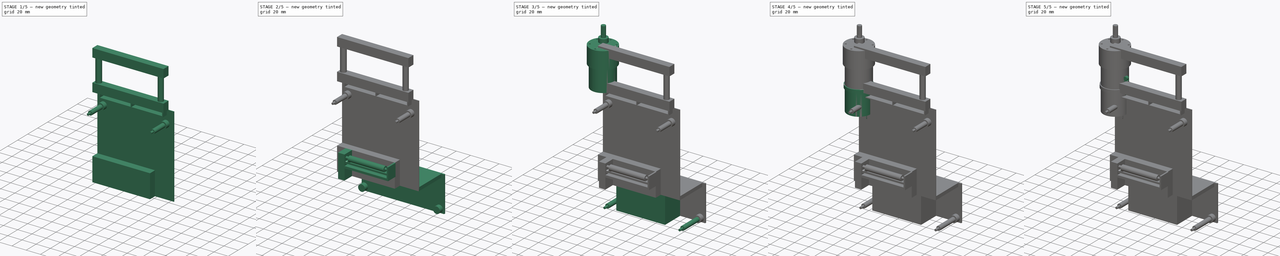
[diagram: build sequence overview — one tinted view per stage of 5, left to right]
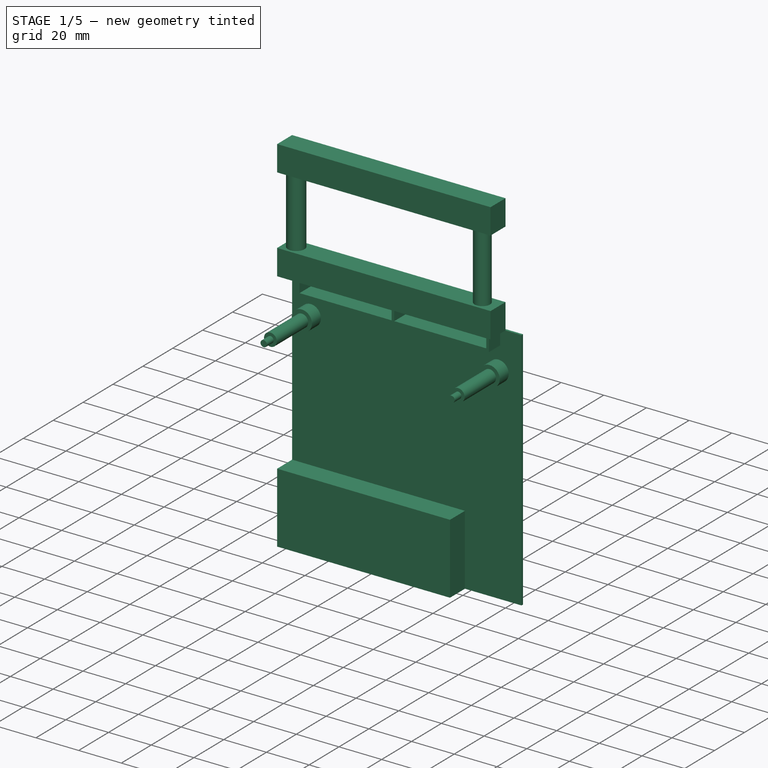
[diagram: stage 1 of 5 — iso view after this stage's code; geometry added in this stage tinted green]
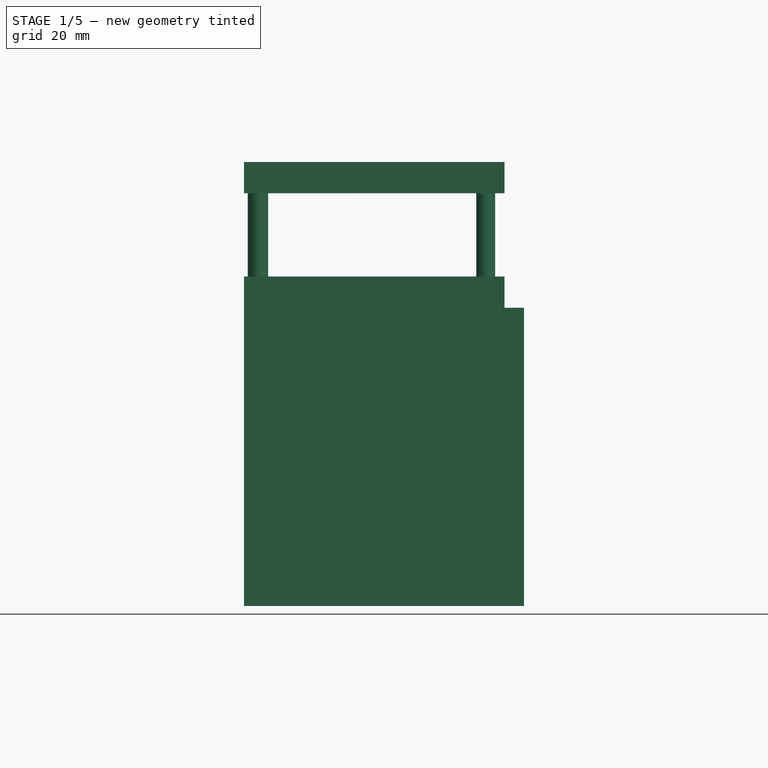
[diagram: stage 1 of 5 — front view after this stage's code; geometry added in this stage tinted green]
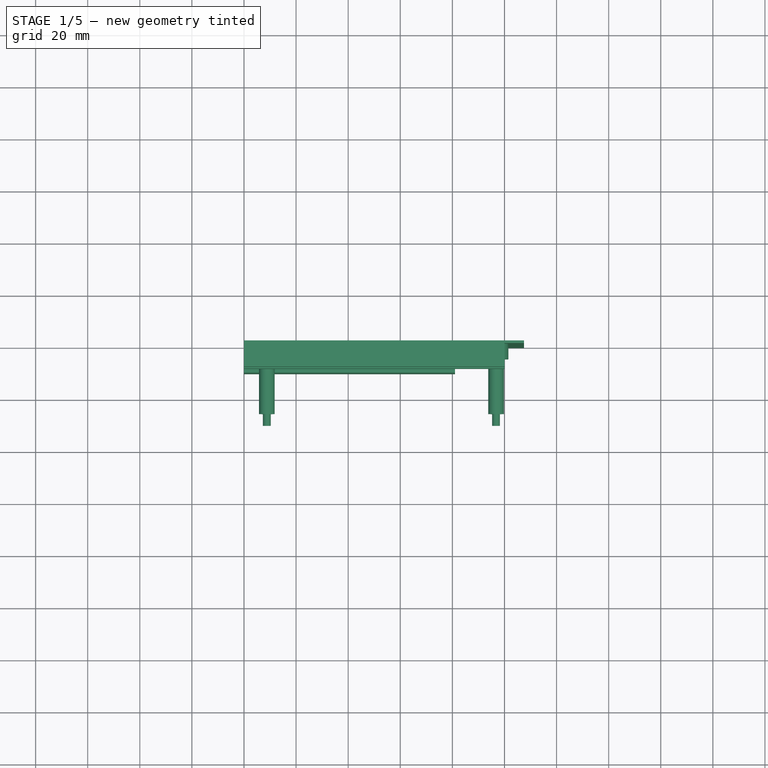
[diagram: stage 1 of 5 — top view after this stage's code; geometry added in this stage tinted green]
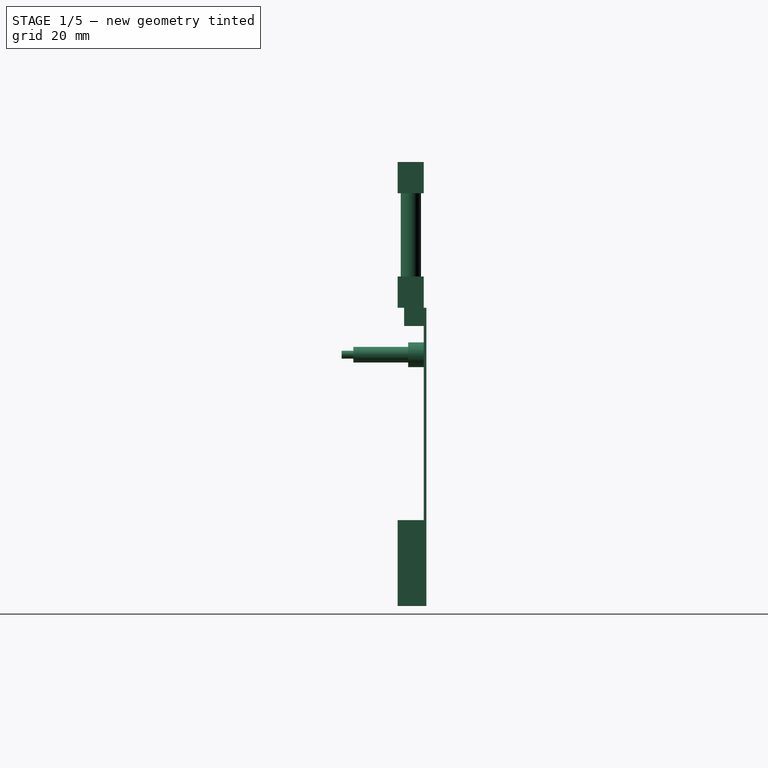
[diagram: stage 1 of 5 — right view after this stage's code; geometry added in this stage tinted green]
FCSTD DOCUMENT  (FreeCAD 1.0R39319 (Git))
Label: Gesamtschnitt Box 1
License: All rights reserved
LicenseURL: https://en.wikipedia.org/wiki/All_rights_reserved
objects: Sketcher::SketchObject×40, PartDesign::Pad×37, PartDesign::Body×6, PartDesign::Fillet×3, PartDesign::Pocket×3
note: 215 computed .brp shape members not serialized (recipe doc carries the construction recipe); baked Part::Feature solids carry a one-line shape summary decoded from their .brp

FEATURE [PartDesign::Body] Body002  label="Körper002"
  AllowCompound = false
  Group = -> [Sketch014,Pad012,Sketch015,Pad013,Sketch016,Pocket002,Sketch017,Pad014,Sketch018,Pad015,Sketch019,Pad016]
  Tip = -> Pad016
FEATURE [Sketcher::SketchObject] Sketch021
  ArcFitTolerance = 1e-06
  FullyConstrained = true
  MakeInternals = false
  MapMode = 5
  Placement = pos=(0,0,0) rot=(1,0,0;1.5708rad)
  sketch-geometry (4):
    g0: LineSegment StartX=0 StartY=0 StartZ=0 EndX=0 EndY=-114.5 EndZ=0
    g1: LineSegment StartX=0 StartY=-114.5 StartZ=0 EndX=107.5 EndY=-114.5 EndZ=0
    g2: LineSegment StartX=107.5 StartY=-114.5 StartZ=0 EndX=107.5 EndY=0 EndZ=0
    g3: LineSegment StartX=107.5 StartY=0 StartZ=0 EndX=0 EndY=0 EndZ=0
  constraints (11):
    c: Coincident(g0,g1)
    c: Coincident(g1,g2)
    c: Coincident(g2,g3)
    c: Coincident(g3,g0)
    c: Vertical(g0)
    c: Vertical(g2)
    c: Horizontal(g1)
    c: Horizontal(g3)
    c: Distance(g0,g2) = 107.5
    c: Distance(g1,g3) = 114.5
    c: Coincident(g0,g-1)
FEATURE [PartDesign::Pad] Pad017
  Direction = (0,-1,2e-16)
  Length = 1
  Length2 = 10
  Placement = pos=(0,0,0) rot=(1,0,0;1.5708rad)
  Profile = -> Sketch021
  ReferenceAxis = -> Sketch021 [N_Axis]
  Refine = true
  Reversed = true
  Suppressed = false
  Type = 0
FEATURE [Sketcher::SketchObject] Sketch020
  ArcFitTolerance = 1e-06
  AttachmentSupport = -> [Pad017]
  ExternalGeometry = -> [Pad017]
  FullyConstrained = true
  MakeInternals = false
  MapMode = 5
  Placement = pos=(0,-1.27e-14,0) rot=(1,0,0;1.5708rad)
  sketch-geometry (15):
    g0: LineSegment StartX=97.5 StartY=0 StartZ=0 EndX=96.25 EndY=0 EndZ=0
    g1: LineSegment StartX=96.25 StartY=0 StartZ=0 EndX=96.25 EndY=-5.75 EndZ=0
    g2: LineSegment StartX=97.5 StartY=-7 StartZ=0 EndX=97.5 EndY=0 EndZ=0
    g3: LineSegment StartX=96.25 StartY=-5.75 StartZ=0 EndX=53.125 EndY=-5.75 EndZ=0
    g4: LineSegment StartX=7.5 StartY=-7 StartZ=0 EndX=97.5 EndY=-7 EndZ=0
    g5: LineSegment StartX=7.5 StartY=-7 StartZ=0 EndX=7.5 EndY=0 EndZ=0
    g6: LineSegment StartX=8.75 StartY=-5.75 StartZ=0 EndX=8.75 EndY=0 EndZ=0
    g7: LineSegment StartX=8.75 StartY=0 StartZ=0 EndX=7.5 EndY=0 EndZ=0
    g8: LineSegment StartX=53.125 StartY=-5.75 StartZ=0 EndX=53.125 EndY=0 EndZ=0
    g9: LineSegment StartX=53.125 StartY=0 StartZ=0 EndX=51.875 EndY=0 EndZ=0
    g10: LineSegment StartX=51.875 StartY=0 StartZ=0 EndX=51.875 EndY=-5.75 EndZ=0
    g11: LineSegment StartX=51.875 StartY=-5.75 StartZ=0 EndX=8.75 EndY=-5.75 EndZ=0
    g12: LineSegment [constr] StartX=53.125 StartY=-5.75 StartZ=0 EndX=53.125 EndY=-7 EndZ=0
    g13: LineSegment [constr] StartX=0 StartY=0 StartZ=0 EndX=7.5 EndY=0 EndZ=0
    g14: LineSegment [constr] StartX=97.5 StartY=0 StartZ=0 EndX=107.5 EndY=0 EndZ=0
  constraints (44):
    c: Coincident(g0,g1)
    c: Coincident(g2,g0)
    c: Horizontal(g0)
    c: Vertical(g1)
    c: Vertical(g2)
    c: Distance(g1,g2) = 1.25
    c: Distance(g0,g2) = 7
    c: PointOnObject(g0,g-1)
    c: Horizontal(g3)
    c: Horizontal(g4)
    c: Distance(g4,g4) = 90
    c: Coincident(g1,g3)
    c: Coincident(g2,g4)
    c: Coincident(g5,g4)
    c: PointOnObject(g5,g-1)
    c: Vertical(g5)
    c: Coincident(g6,g11)
    c: PointOnObject(g6,g-1)
    c: Vertical(g6)
    c: Coincident(g7,g6)
    c: Coincident(g7,g5)
    c: Equal(g7,g0)
    c: Coincident(g8,g9)
    c: Coincident(g9,g10)
    c: Horizontal(g9)
    c: Vertical(g8)
    c: Vertical(g10)
    c: PointOnObject(g8,g-1)
    c: Coincident(g10,g11)
    c: Coincident(g3,g8)
    c: Horizontal(g10,g3)
    c: Equal(g9,g7)
    c: Horizontal(g11)
    c: Vertical(g12)
    c: PointOnObject(g12,g4)
    c: Equal(g12,g9)
    c: Coincident(g3,g12)
    c: Equal(g11,g3)
    c: Coincident(g13,g-1)
    c: Coincident(g13,g5)
    c: DistanceX(g13,g13) = 7.5
    c: Coincident(g14,g0)
    c: Coincident(g14,g-3)
    c: DistanceX(g14,g14) = 10
FEATURE [PartDesign::Pad] Pad018
  BaseFeature = -> Pad017
  Direction = (0,-1,2e-16)
  Length = 7.5
  Length2 = 10
  Placement = pos=(0,0,0) rot=(1,0,0;1.5708rad)
  Profile = -> Sketch020
  ReferenceAxis = -> Sketch020 [N_Axis]
  Refine = true
  Suppressed = false
  Type = 0
FEATURE [Sketcher::SketchObject] Sketch022
  ArcFitTolerance = 1e-06
  AttachmentSupport = -> [Pad018]
  ExternalGeometry = -> [Pad018]
  FullyConstrained = true
  MakeInternals = false
  MapMode = 5
  Placement = pos=(0,-1.27e-14,0) rot=(1,0,0;1.5708rad)
  sketch-geometry (4):
    g0: Circle CenterX=8.75 CenterY=-18 CenterZ=0 NormalX=0 NormalY=0 NormalZ=1 AngleXU=0 Radius=4.75
    g1: Circle CenterX=96.75 CenterY=-18 CenterZ=0 NormalX=0 NormalY=0 NormalZ=1 AngleXU=0 Radius=4.75
    g2: LineSegment [constr] StartX=4 StartY=-18 StartZ=0 EndX=0 EndY=-18 EndZ=0
    g3: LineSegment [constr] StartX=101.5 StartY=-18 StartZ=0 EndX=107.5 EndY=-18 EndZ=0
  constraints (14):
    c: Equal(g0,g1)
    c: Horizontal(g1,g0)
    c: Diameter(g0) = 9.5
    c: PointOnObject(g2,g0)
    c: PointOnObject(g2,g-3)
    c: Horizontal(g2)
    c: Horizontal(g2,g0)
    c: PointOnObject(g3,g1)
    c: PointOnObject(g3,g-4)
    c: Horizontal(g3)
    c: Horizontal(g3,g1)
    c: DistanceX(g3,g3) = 6
    c: DistanceX(g2,g2) = 4
    c: DistanceY(g0,g-1) = 18
FEATURE [PartDesign::Pad] Pad019
  BaseFeature = -> Pad018
  Direction = (0,-1,2e-16)
  Length = 6
  Length2 = 10
  Placement = pos=(0,0,0) rot=(1,0,0;1.5708rad)
  Profile = -> Sketch022
  ReferenceAxis = -> Sketch022 [N_Axis]
  Refine = true
  Suppressed = false
  Type = 0
FEATURE [Sketcher::SketchObject] Sketch023
  ArcFitTolerance = 1e-06
  AttachmentSupport = -> [Pad019]
  ExternalGeometry = -> [Pad019]
  FullyConstrained = true
  MakeInternals = false
  MapMode = 5
  Placement = pos=(0,-6,7e-16) rot=(1,0,0;1.5708rad)
  sketch-geometry (2):
    g0: Circle CenterX=8.75 CenterY=-18 CenterZ=0 NormalX=0 NormalY=0 NormalZ=1 AngleXU=0 Radius=3
    g1: Circle CenterX=96.75 CenterY=-18 CenterZ=0 NormalX=0 NormalY=0 NormalZ=1 AngleXU=0 Radius=3
  constraints (4):
    c: Coincident(g0,g-3)
    c: Coincident(g1,g-4)
    c: Equal(g0,g1)
    c: Diameter(g0) = 6
FEATURE [PartDesign::Pad] Pad020
  BaseFeature = -> Pad019
  Direction = (0,-1,2e-16)
  Length = 21
  Length2 = 10
  Placement = pos=(0,0,0) rot=(1,0,0;1.5708rad)
  Profile = -> Sketch023
  ReferenceAxis = -> Sketch023 [N_Axis]
  Refine = true
  Suppressed = false
  Type = 0
FEATURE [Sketcher::SketchObject] Sketch024
  ArcFitTolerance = 1e-06
  AttachmentSupport = -> [Pad020]
  ExternalGeometry = -> [Pad020]
  FullyConstrained = true
  MakeInternals = false
  MapMode = 5
  Placement = pos=(0,-27,3e-15) rot=(1,0,0;1.5708rad)
  sketch-geometry (2):
    g0: Circle CenterX=8.75 CenterY=-18 CenterZ=0 NormalX=0 NormalY=0 NormalZ=1 AngleXU=0 Radius=1.5
    g1: Circle CenterX=96.75 CenterY=-18 CenterZ=0 NormalX=0 NormalY=0 NormalZ=1 AngleXU=0 Radius=1.5
  constraints (4):
    c: Diameter(g0) = 3
    c: Coincident(g0,g-3)
    c: Coincident(g1,g-4)
    c: Equal(g1,g0)
FEATURE [PartDesign::Pad] Pad021
  BaseFeature = -> Pad020
  Direction = (0,-1,2e-16)
  Length = 4.5
  Length2 = 10
  Placement = pos=(0,0,0) rot=(1,0,0;1.5708rad)
  Profile = -> Sketch024
  ReferenceAxis = -> Sketch024 [N_Axis]
  Refine = true
  Suppressed = false
  Type = 0
FEATURE [Sketcher::SketchObject] Sketch025
  ArcFitTolerance = 1e-06
  AttachmentSupport = -> [Pad021]
  ExternalGeometry = -> [Pad021]
  FullyConstrained = true
  MakeInternals = false
  MapMode = 5
  Placement = pos=(0,-1.27e-14,0) rot=(1,0,0;1.5708rad)
  sketch-geometry (4):
    g0: LineSegment StartX=0 StartY=-114.5 StartZ=0 EndX=81 EndY=-114.5 EndZ=0
    g1: LineSegment StartX=81 StartY=-114.5 StartZ=0 EndX=81 EndY=-81.5 EndZ=0
    g2: LineSegment StartX=81 StartY=-81.5 StartZ=0 EndX=0 EndY=-81.5 EndZ=0
    g3: LineSegment StartX=0 StartY=-81.5 StartZ=0 EndX=0 EndY=-114.5 EndZ=0
  constraints (11):
    c: Coincident(g0,g1)
    c: Coincident(g1,g2)
    c: Coincident(g2,g3)
    c: Coincident(g3,g0)
    c: Horizontal(g0)
    c: Horizontal(g2)
    c: Vertical(g1)
    c: Vertical(g3)
    c: Distance(g1,g3) = 81
    c: Distance(g0,g2) = 33
    c: Coincident(g0,g-3)
FEATURE [PartDesign::Pad] Pad022
  BaseFeature = -> Pad021
  Direction = (0,-1,2e-16)
  Length = 10
  Length2 = 10
  Placement = pos=(0,0,0) rot=(1,0,0;1.5708rad)
  Profile = -> Sketch025
  ReferenceAxis = -> Sketch025 [N_Axis]
  Refine = true
  Suppressed = false
  Type = 0
FEATURE [PartDesign::Body] Body003  label="Körper003"
  AllowCompound = false
  Group = -> [Sketch021,Pad017,Sketch020,Pad018,Sketch022,Pad019,Sketch023,Pad020,Sketch024,Pad021,Sketch025,Pad022,Sketch026,Pad023,Sketch027,Pad024,Sketch028,Pad025,Sketch029,Pad026,Sketch030,Pad027,Sketch031,Pad028,Sketch032,Pad029,Sketch033,Pad030,Sketch034,Pad031,Sketch035,Pad032,Sketch036,Pad033]
  Tip = -> Pad033
FEATURE [PartDesign::Body] Body004  label="Körper004"
  AllowCompound = false
  Origin = -> Origin
FEATURE [Sketcher::SketchObject] Sketch037
  ArcFitTolerance = 1e-06
  AttachmentOffset = pos=(0,0,12) rot=(0,0,1;0rad)
  AttachmentSupport = -> [XY_Plane]
  FullyConstrained = false
  MakeInternals = false
  MapMode = 5
  Placement = pos=(0,0,12) rot=(0,0,1;0rad)
  sketch-geometry (2):
    g0: Circle CenterX=5.36501 CenterY=-4.93664 CenterZ=0 NormalX=0 NormalY=0 NormalZ=1 AngleXU=0 Radius=3.90193
    g1: Circle CenterX=92.7747 CenterY=-5.16802 CenterZ=0 NormalX=0 NormalY=0 NormalZ=1 AngleXU=0 Radius=3.62992
FEATURE [Sketcher::SketchObject] Sketch038
  ArcFitTolerance = 1e-06
  AttachmentSupport = -> [XY_Plane]
  FullyConstrained = true
  MakeInternals = false
  MapMode = 5
  sketch-geometry (4):
    g0: LineSegment StartX=0 StartY=0 StartZ=0 EndX=0 EndY=-10 EndZ=0
    g1: LineSegment StartX=0 StartY=-10 StartZ=0 EndX=100 EndY=-10 EndZ=0
    g2: LineSegment StartX=100 StartY=-10 StartZ=0 EndX=100 EndY=0 EndZ=0
    g3: LineSegment StartX=100 StartY=0 StartZ=0 EndX=0 EndY=0 EndZ=0
  constraints (11):
    c: Coincident(g0,g1)
    c: Coincident(g1,g2)
    c: Coincident(g2,g3)
    c: Coincident(g3,g0)
    c: Vertical(g0)
    c: Vertical(g2)
    c: Horizontal(g1)
    c: Horizontal(g3)
    c: Distance(g0,g2) = 100
    c: Distance(g1,g3) = 10
    c: Coincident(g0,g-1)
FEATURE [PartDesign::Pad] Pad034
  Direction = (0,0,1)
  Length = 12
  Length2 = 10
  Profile = -> Sketch038
  ReferenceAxis = -> Sketch038 [N_Axis]
  Refine = true
  Suppressed = false
  Type = 0
FEATURE [PartDesign::Pad] Pad035
  BaseFeature = -> Pad034
  Direction = (0,0,1)
  Length = 44
  Length2 = 10
  Profile = -> Sketch037
  ReferenceAxis = -> Sketch037 [N_Axis]
  Refine = true
  Suppressed = false
  Type = 0
FEATURE [Sketcher::SketchObject] Sketch039
  ArcFitTolerance = 1e-06
  AttachmentOffset = pos=(0,0,56) rot=(0,0,1;0rad)
  AttachmentSupport = -> [XY_Plane]
  FullyConstrained = true
  MakeInternals = false
  MapMode = 5
  Placement = pos=(0,0,56) rot=(0,0,1;0rad)
  sketch-geometry (4):
    g0: LineSegment StartX=0 StartY=0 StartZ=0 EndX=0 EndY=-10 EndZ=0
    g1: LineSegment StartX=0 StartY=-10 StartZ=0 EndX=100 EndY=-10 EndZ=0
    g2: LineSegment StartX=100 StartY=-10 StartZ=0 EndX=100 EndY=0 EndZ=0
    g3: LineSegment StartX=100 StartY=0 StartZ=0 EndX=0 EndY=0 EndZ=0
  constraints (11):
    c: Coincident(g0,g1)
    c: Coincident(g1,g2)
    c: Coincident(g2,g3)
    c: Coincident(g3,g0)
    c: Vertical(g0)
    c: Vertical(g2)
    c: Horizontal(g1)
    c: Horizontal(g3)
    c: Distance(g0,g2) = 100
    c: Distance(g1,g3) = 10
    c: Coincident(g0,g-1)
FEATURE [PartDesign::Pad] Pad036
  BaseFeature = -> Pad035
  Direction = (0,0,1)
  Length = 12
  Length2 = 10
  Profile = -> Sketch039
  ReferenceAxis = -> Sketch039 [N_Axis]
  Refine = true
  Reversed = true
  Suppressed = false
  Type = 0
FEATURE [PartDesign::Body] Body005  label="Körper005"
  AllowCompound = false
  Group = -> [Sketch037,Sketch038,Pad034,Pad035,Sketch039,Pad036]
  Origin = -> Origin001
  Placement = pos=(0,-23,-99) rot=(0,0,1;0rad)
  Tip = -> Pad036
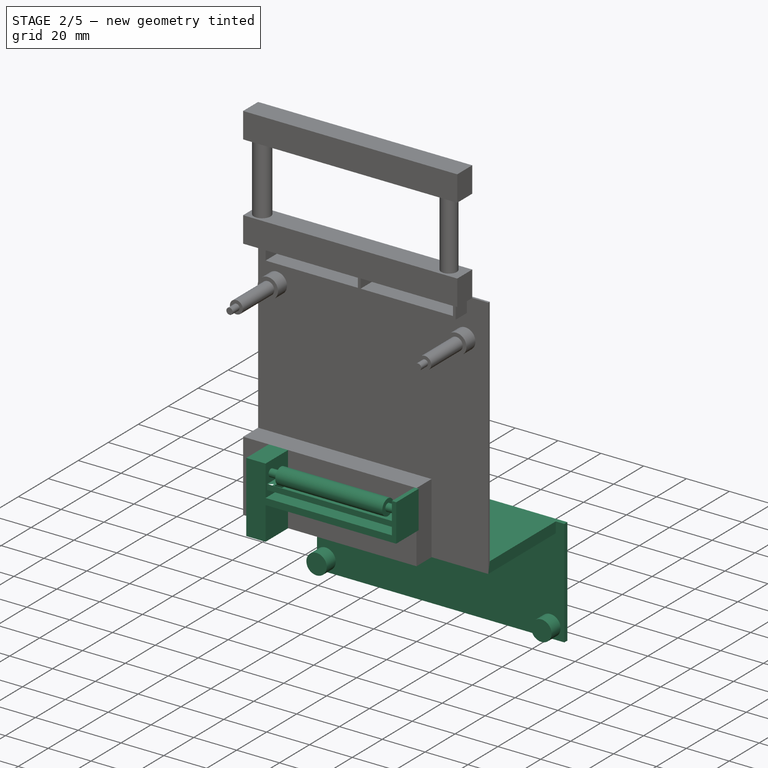
[diagram: stage 2 of 5 — iso view after this stage's code; geometry added in this stage tinted green]
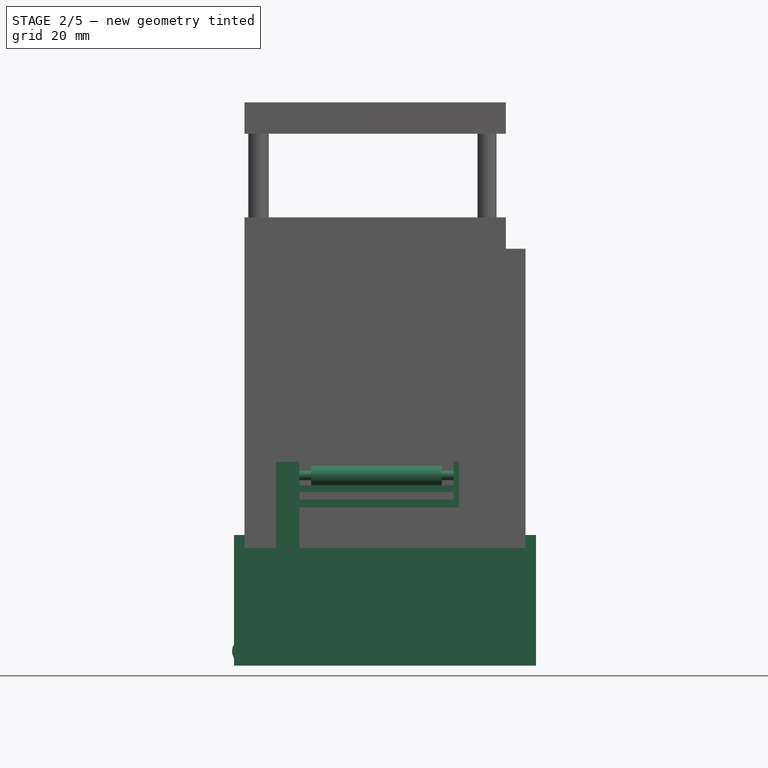
[diagram: stage 2 of 5 — front view after this stage's code; geometry added in this stage tinted green]
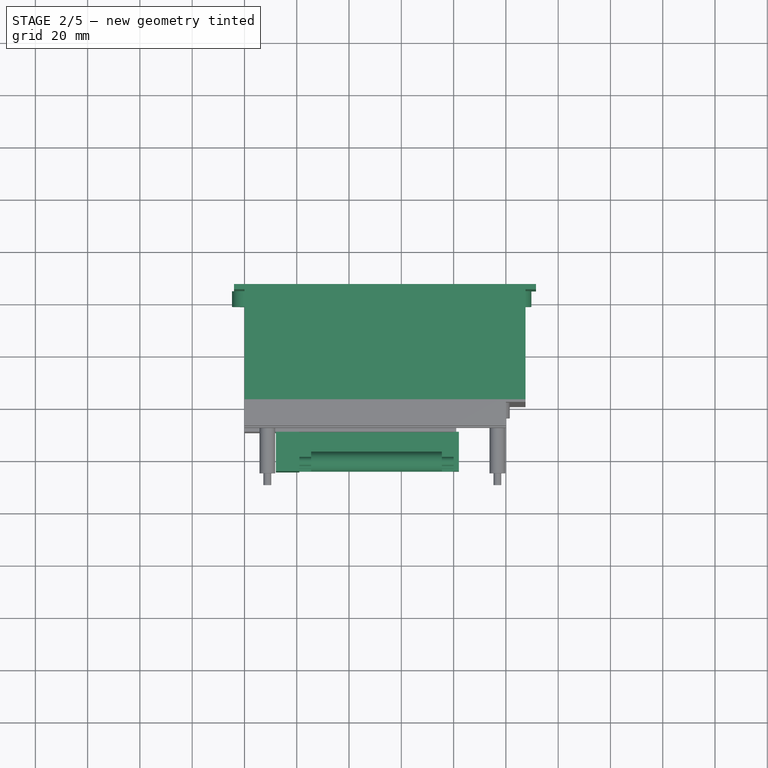
[diagram: stage 2 of 5 — top view after this stage's code; geometry added in this stage tinted green]
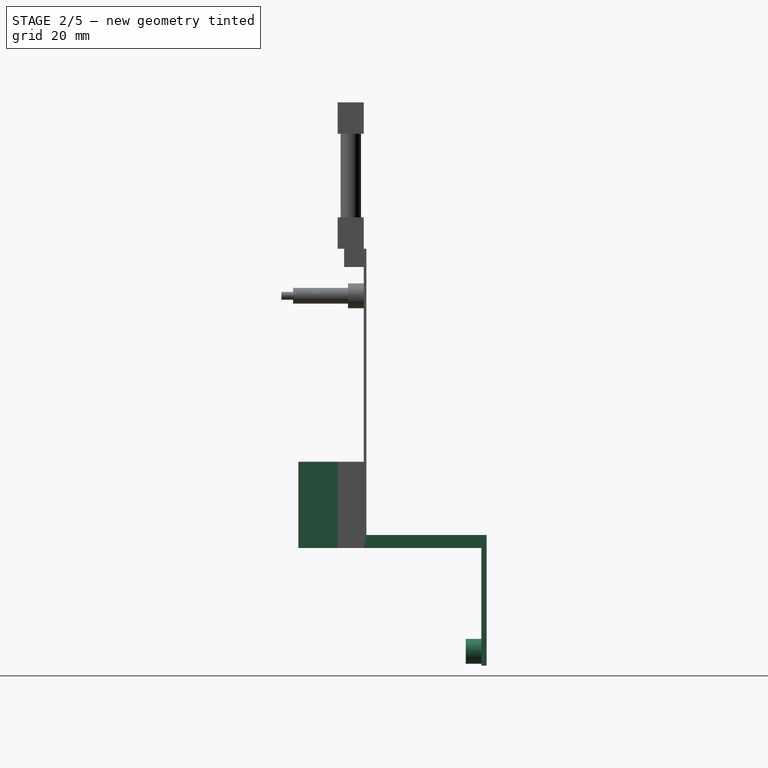
[diagram: stage 2 of 5 — right view after this stage's code; geometry added in this stage tinted green]
FEATURE [Sketcher::SketchObject] Sketch026
  ArcFitTolerance = 1e-06
  AttachmentSupport = -> [Pad022]
  ExternalGeometry = -> [Pad022]
  FullyConstrained = true
  MakeInternals = false
  MapMode = 5
  Placement = pos=(0,-10,1.1e-15) rot=(1,0,0;1.5708rad)
  sketch-geometry (11):
    g0: LineSegment StartX=21 StartY=-81.5 StartZ=0 EndX=12 EndY=-81.5 EndZ=0
    g1: LineSegment StartX=12 StartY=-81.5 StartZ=0 EndX=12 EndY=-114.5 EndZ=0
    g2: LineSegment StartX=12 StartY=-114.5 StartZ=0 EndX=21 EndY=-114.5 EndZ=0
    g3: LineSegment StartX=21 StartY=-114.5 StartZ=0 EndX=21 EndY=-99 EndZ=0
    g4: LineSegment StartX=82 StartY=-99 StartZ=0 EndX=82 EndY=-81.5 EndZ=0
    g5: LineSegment StartX=80 StartY=-96 StartZ=0 EndX=21 EndY=-96 EndZ=0
    g6: LineSegment StartX=21 StartY=-99 StartZ=0 EndX=82 EndY=-99 EndZ=0
    g7: LineSegment StartX=21 StartY=-96 StartZ=0 EndX=21 EndY=-81.5 EndZ=0
    g8: LineSegment StartX=80 StartY=-81.5 StartZ=0 EndX=80 EndY=-96 EndZ=0
    g9: LineSegment StartX=80 StartY=-81.5 StartZ=0 EndX=82 EndY=-81.5 EndZ=0
    g10: LineSegment [constr] StartX=21 StartY=-96 StartZ=0 EndX=21 EndY=-99 EndZ=0
  constraints (32):
    c: Coincident(g0,g1)
    c: Coincident(g1,g2)
    c: Coincident(g2,g3)
    c: Coincident(g7,g0)
    c: Horizontal(g0)
    c: Horizontal(g2)
    c: Vertical(g1)
    c: Vertical(g3)
    c: DistanceX(g0,g0) = 9
    c: PointOnObject(g2,g-3)
    c: Vertical(g4)
    c: DistanceY(g4,g4) = 17.5
    c: Horizontal(g5)
    c: Horizontal(g6)
    c: PointOnObject(g5,g7)
    c: PointOnObject(g7,g5)
    c: Vertical(g7)
    c: Coincident(g3,g6)
    c: Vertical(g3,g5)
    c: DistanceX(g-3,g1) = 12
    c: Vertical(g8)
    c: Coincident(g9,g8)
    c: Coincident(g9,g4)
    c: Horizontal(g9)
    c: DistanceX(g9,g9) = 2
    c: Symmetric(g8,g4,g-4)
    c: PointOnObject(g0,g-5)
    c: Coincident(g5,g8)
    c: Coincident(g10,g5)
    c: Coincident(g10,g3)
    c: DistanceY(g10,g10) = 3
    c: Coincident(g4,g6)
FEATURE [PartDesign::Pad] Pad023
  BaseFeature = -> Pad022
  Direction = (0,-1,2e-16)
  Length = 15
  Length2 = 10
  Placement = pos=(0,0,0) rot=(1,0,0;1.5708rad)
  Profile = -> Sketch026
  ReferenceAxis = -> Sketch026 [N_Axis]
  Refine = true
  Suppressed = false
  Type = 0
FEATURE [Sketcher::SketchObject] Sketch027
  ArcFitTolerance = 1e-06
  AttachmentSupport = -> [Pad023]
  ExternalGeometry = -> [Pad023]
  FullyConstrained = true
  MakeInternals = false
  MapMode = 5
  Placement = pos=(0,-10,2.2e-15) rot=(1,0,0;1.5708rad)
  sketch-geometry (4):
    g0: LineSegment StartX=21 StartY=-90.5 StartZ=0 EndX=21 EndY=-93 EndZ=0
    g1: LineSegment StartX=21 StartY=-93 StartZ=0 EndX=80 EndY=-93 EndZ=0
    g2: LineSegment StartX=80 StartY=-93 StartZ=0 EndX=80 EndY=-90.5 EndZ=0
    g3: LineSegment StartX=80 StartY=-90.5 StartZ=0 EndX=21 EndY=-90.5 EndZ=0
  constraints (12):
    c: Coincident(g0,g1)
    c: Coincident(g1,g2)
    c: Coincident(g2,g3)
    c: Coincident(g3,g0)
    c: Vertical(g0)
    c: Vertical(g2)
    c: Horizontal(g1)
    c: Horizontal(g3)
    c: PointOnObject(g0,g-4)
    c: PointOnObject(g1,g-5)
    c: DistanceY(g0,g0) = 2.5
    c: DistanceY(g-4,g0) = 3
FEATURE [PartDesign::Pad] Pad024
  BaseFeature = -> Pad023
  Direction = (0,-1,2e-16)
  Length = 14
  Length2 = 10
  Placement = pos=(0,0,0) rot=(1,0,0;1.5708rad)
  Profile = -> Sketch027
  ReferenceAxis = -> Sketch027 [N_Axis]
  Refine = true
  Suppressed = false
  Type = 0
FEATURE [Sketcher::SketchObject] Sketch028
  ArcFitTolerance = 1e-06
  AttachmentSupport = -> [Pad024]
  ExternalGeometry = -> [Pad024]
  FullyConstrained = true
  MakeInternals = false
  MapMode = 5
  Placement = pos=(21,0,0) rot=(0.707107,0,0.707107;3.14159rad)
  sketch-geometry (4):
    g0: Circle CenterX=-86.75 CenterY=21.25 CenterZ=0 NormalX=0 NormalY=0 NormalZ=1 AngleXU=0 Radius=1.75
    g1: Circle [constr] CenterX=-86.75 CenterY=21.25 CenterZ=0 NormalX=0 NormalY=0 NormalZ=1 AngleXU=0 Radius=3.75
    g2: GeomPoint [constr] X=-90.5 Y=21.25 Z=0
    g3: GeomPoint [constr] X=-86.75 Y=25 Z=0
  constraints (9):
    c: Diameter(g0) = 3.5
    c: Diameter(g1) = 7.5
    c: Coincident(g1,g0)
    c: PointOnObject(g2,g1)
    c: Horizontal(g2,g0)
    c: PointOnObject(g2,g-3)
    c: PointOnObject(g3,g1)
    c: Vertical(g3,g0)
    c: PointOnObject(g3,g-5)
FEATURE [PartDesign::Pad] Pad025
  BaseFeature = -> Pad024
  Direction = (1,0,-2e-16)
  Length = 4.5
  Length2 = 10
  Placement = pos=(0,0,0) rot=(1,0,0;1.5708rad)
  Profile = -> Sketch028
  ReferenceAxis = -> Sketch028 [N_Axis]
  Refine = true
  Suppressed = false
  Type = 0
FEATURE [Sketcher::SketchObject] Sketch029
  ArcFitTolerance = 1e-06
  AttachmentSupport = -> [Pad025]
  ExternalGeometry = -> [Pad025]
  FullyConstrained = true
  MakeInternals = false
  MapMode = 5
  Placement = pos=(25.5,0,0) rot=(0.707107,0,0.707107;3.14159rad)
  sketch-geometry (1):
    g0: Circle CenterX=-86.75 CenterY=21.25 CenterZ=0 NormalX=0 NormalY=0 NormalZ=1 AngleXU=0 Radius=3.75
  constraints (2):
    c: Coincident(g0,g-3)
    c: Diameter(g0) = 7.5
FEATURE [PartDesign::Pad] Pad026
  BaseFeature = -> Pad025
  Direction = (1,0,-2e-16)
  Length = 50
  Length2 = 10
  Placement = pos=(0,0,0) rot=(1,0,0;1.5708rad)
  Profile = -> Sketch029
  ReferenceAxis = -> Sketch029 [N_Axis]
  Refine = true
  Suppressed = false
  Type = 0
FEATURE [Sketcher::SketchObject] Sketch030
  ArcFitTolerance = 1e-06
  AttachmentSupport = -> [Pad026]
  ExternalGeometry = -> [Pad026]
  FullyConstrained = true
  MakeInternals = false
  MapMode = 5
  Placement = pos=(75.5,0,-4.77e-14) rot=(0.707107,0,0.707107;3.14159rad)
  sketch-geometry (1):
    g0: Circle CenterX=-86.75 CenterY=21.25 CenterZ=0 NormalX=0 NormalY=0 NormalZ=1 AngleXU=0 Radius=1.75
  constraints (2):
    c: Coincident(g0,g-3)
    c: Diameter(g0) = 3.5
FEATURE [PartDesign::Pad] Pad027
  BaseFeature = -> Pad026
  Direction = (1,0,-2e-16)
  Length = 4.5
  Length2 = 10
  Placement = pos=(0,0,0) rot=(1,0,0;1.5708rad)
  Profile = -> Sketch030
  ReferenceAxis = -> Sketch030 [N_Axis]
  Refine = true
  Suppressed = false
  Type = 0
FEATURE [Sketcher::SketchObject] Sketch031
  ArcFitTolerance = 1e-06
  AttachmentSupport = -> [Pad027]
  ExternalGeometry = -> [Pad027]
  FullyConstrained = true
  MakeInternals = false
  MapMode = 5
  Placement = pos=(0,1,-1.2e-15) rot=(-1,0,0;1.5708rad)
  sketch-geometry (4):
    g0: LineSegment StartX=0 StartY=114.5 StartZ=0 EndX=0 EndY=109.5 EndZ=0
    g1: LineSegment StartX=0 StartY=109.5 StartZ=0 EndX=107.5 EndY=109.5 EndZ=0
    g2: LineSegment StartX=107.5 StartY=109.5 StartZ=0 EndX=107.5 EndY=114.5 EndZ=0
    g3: LineSegment StartX=107.5 StartY=114.5 StartZ=0 EndX=0 EndY=114.5 EndZ=0
  constraints (10):
    c: Coincident(g0,g1)
    c: Coincident(g1,g2)
    c: Coincident(g2,g3)
    c: Coincident(g3,g0)
    c: Vertical(g0)
    c: Vertical(g2)
    c: Horizontal(g1)
    c: Coincident(g0,g-3)
    c: Coincident(g2,g-3)
    c: DistanceY(g2,g2) = 5
FEATURE [PartDesign::Pad] Pad028
  BaseFeature = -> Pad027
  Direction = (0,1,-1.1e-15)
  Length = 44
  Length2 = 10
  Placement = pos=(0,0,0) rot=(1,0,0;1.5708rad)
  Profile = -> Sketch031
  ReferenceAxis = -> Sketch031 [N_Axis]
  Refine = true
  Suppressed = false
  Type = 0
FEATURE [Sketcher::SketchObject] Sketch032
  ArcFitTolerance = 1e-06
  AttachmentSupport = -> [Pad028]
  ExternalGeometry = -> [Pad028]
  FullyConstrained = true
  MakeInternals = false
  MapMode = 5
  Placement = pos=(0,45,-5.5e-14) rot=(-1,0,0;1.5708rad)
  sketch-geometry (4):
    g0: LineSegment StartX=-4 StartY=109.5 StartZ=0 EndX=111.5 EndY=109.5 EndZ=0
    g1: LineSegment StartX=111.5 StartY=109.5 StartZ=0 EndX=111.5 EndY=159.5 EndZ=0
    g2: LineSegment StartX=111.5 StartY=159.5 StartZ=0 EndX=-4 EndY=159.5 EndZ=0
    g3: LineSegment StartX=-4 StartY=159.5 StartZ=0 EndX=-4 EndY=109.5 EndZ=0
  constraints (12):
    c: Coincident(g0,g1)
    c: Coincident(g1,g2)
    c: Coincident(g2,g3)
    c: Coincident(g3,g0)
    c: Horizontal(g0)
    c: Horizontal(g2)
    c: Vertical(g1)
    c: Vertical(g3)
    c: DistanceY(g-3,g2) = 45
    c: DistanceX(g0,g-4) = 4
    c: DistanceX(g-4,g0) = 4
    c: Horizontal(g0,g-4)
FEATURE [PartDesign::Pad] Pad029
  BaseFeature = -> Pad028
  Direction = (0,1,-1.1e-15)
  Length = 2
  Length2 = 10
  Placement = pos=(0,0,0) rot=(1,0,0;1.5708rad)
  Profile = -> Sketch032
  ReferenceAxis = -> Sketch032 [N_Axis]
  Refine = true
  Suppressed = false
  Type = 0
FEATURE [Sketcher::SketchObject] Sketch033
  ArcFitTolerance = 1e-06
  AttachmentSupport = -> [Pad029]
  ExternalGeometry = -> [Pad029]
  FullyConstrained = true
  MakeInternals = false
  MapMode = 5
  Placement = pos=(0,45,-5.62e-14) rot=(1,0,0;1.5708rad)
  sketch-geometry (2):
    g0: Circle CenterX=0 CenterY=-154 CenterZ=0 NormalX=0 NormalY=0 NormalZ=1 AngleXU=0 Radius=4.75
    g1: Circle CenterX=105 CenterY=-154 CenterZ=0 NormalX=0 NormalY=0 NormalZ=1 AngleXU=0 Radius=4.75
  constraints (6):
    c: Equal(g1,g0)
    c: Horizontal(g0,g1)
    c: Diameter(g1) = 9.5
    c: DistanceY(g0,g-9) = 39.5
    c: DistanceX(g0,g1) = 105
    c: Vertical(g-9,g0)
FEATURE [PartDesign::Pad] Pad030
  BaseFeature = -> Pad029
  Direction = (0,-1,1.4e-15)
  Length = 6
  Length2 = 10
  Placement = pos=(0,0,0) rot=(1,0,0;1.5708rad)
  Profile = -> Sketch033
  ReferenceAxis = -> Sketch033 [N_Axis]
  Refine = true
  Suppressed = false
  Type = 0
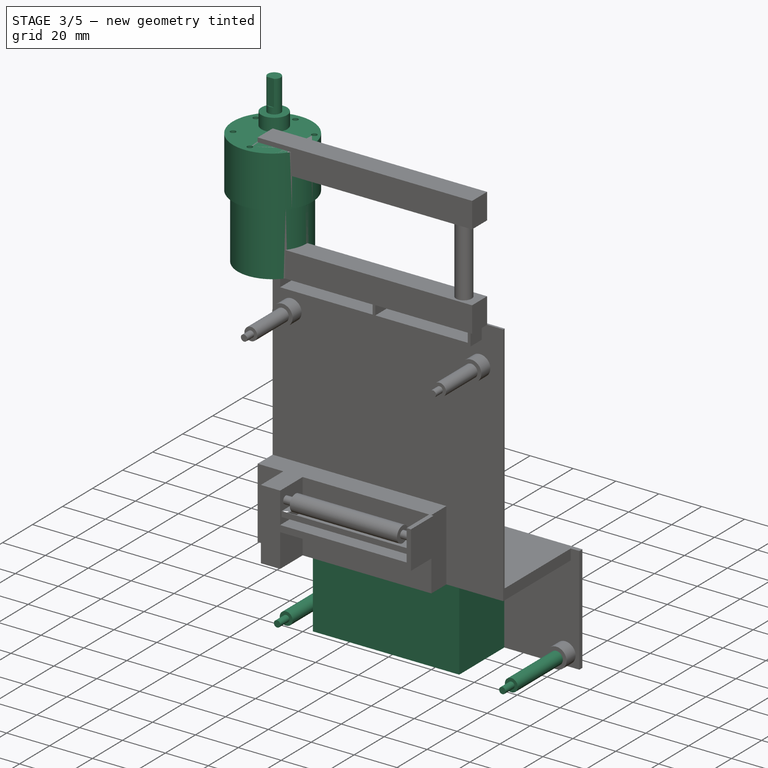
[diagram: stage 3 of 5 — iso view after this stage's code; geometry added in this stage tinted green]
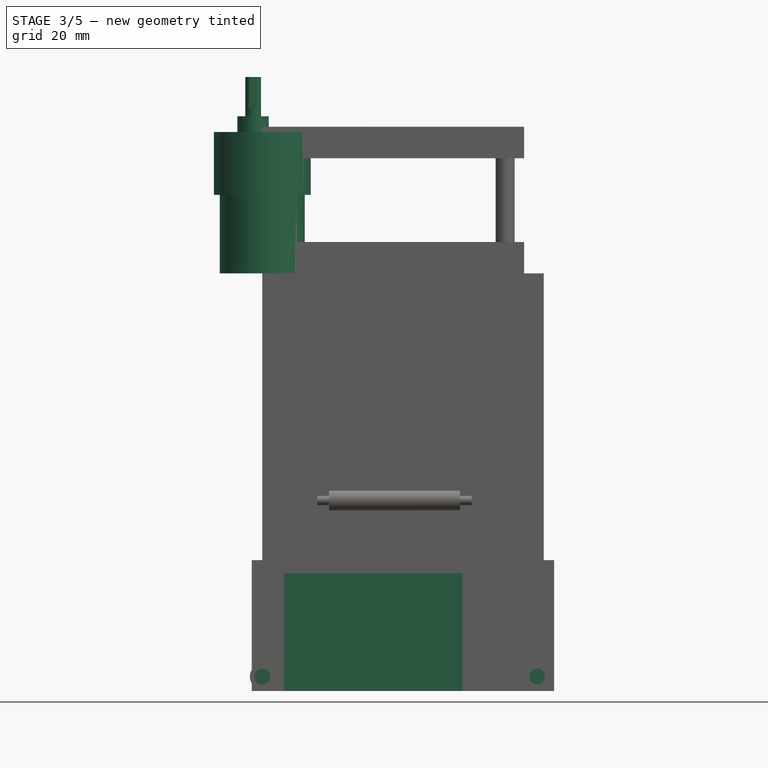
[diagram: stage 3 of 5 — front view after this stage's code; geometry added in this stage tinted green]
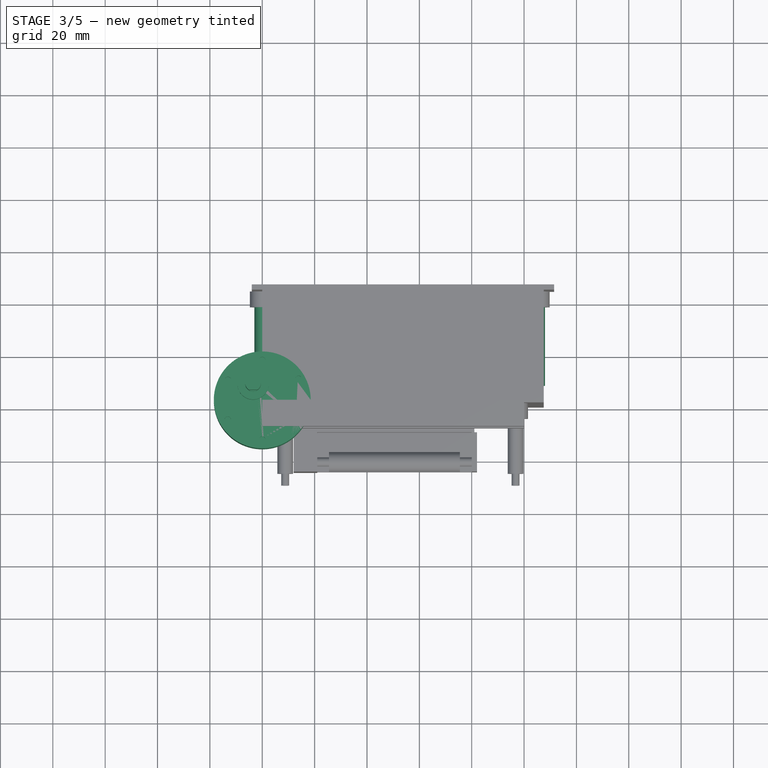
[diagram: stage 3 of 5 — top view after this stage's code; geometry added in this stage tinted green]
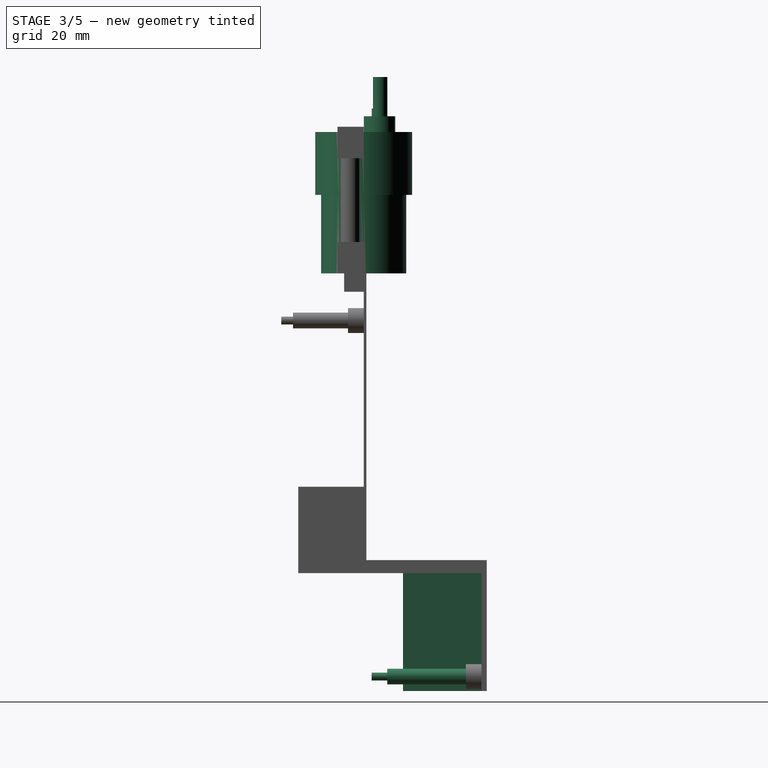
[diagram: stage 3 of 5 — right view after this stage's code; geometry added in this stage tinted green]
FEATURE [PartDesign::Body] Body001  label="Körper001"
  AllowCompound = false
  Group = -> [Sketch005,Pad005,Sketch006,Pad006,Sketch007,Pad007,Sketch008,Pad008,Fillet002,Sketch009,Pad009,Sketch010,Pocket,Sketch011,Pocket001,Sketch012,Pad010,Sketch013,Pad011]
  Placement = pos=(45,73,0) rot=(0,0,1;0rad)
  Tip = -> Pad011
FEATURE [Sketcher::SketchObject] Sketch014
  ArcFitTolerance = 1e-06
  FullyConstrained = true
  MakeInternals = false
  MapMode = 5
  sketch-geometry (1):
    g0: Circle CenterX=0 CenterY=0 CenterZ=0 NormalX=0 NormalY=0 NormalZ=1 AngleXU=0 Radius=16.25
  constraints (2):
    c: Diameter(g0) = 32.5
    c: Coincident(g0,g-1)
FEATURE [PartDesign::Pad] Pad012
  Direction = (0,0,1)
  Length = 30
  Length2 = 10
  Profile = -> Sketch014
  ReferenceAxis = -> Sketch014 [N_Axis]
  Refine = true
  Suppressed = false
  Type = 0
FEATURE [Sketcher::SketchObject] Sketch015
  ArcFitTolerance = 1e-06
  AttachmentSupport = -> [Pad012]
  FullyConstrained = true
  MakeInternals = false
  MapMode = 5
  Placement = pos=(0,0,30) rot=(0,0,1;0rad)
  sketch-geometry (1):
    g0: Circle CenterX=0 CenterY=0 CenterZ=0 NormalX=0 NormalY=0 NormalZ=1 AngleXU=0 Radius=18.5
  constraints (2):
    c: Diameter(g0) = 37
    c: Coincident(g0,g-1)
FEATURE [PartDesign::Pad] Pad013
  BaseFeature = -> Pad012
  Direction = (0,0,1)
  Length = 24
  Length2 = 10
  Profile = -> Sketch015
  ReferenceAxis = -> Sketch015 [N_Axis]
  Refine = true
  Suppressed = false
  Type = 0
FEATURE [Sketcher::SketchObject] Sketch016
  ArcFitTolerance = 1e-06
  AttachmentSupport = -> [Pad013]
  FullyConstrained = false
  MakeInternals = false
  MapMode = 5
  Placement = pos=(0,0,54) rot=(0,0,1;0rad)
  sketch-geometry (14):
    g0: LineSegment [constr] StartX=13.1475 StartY=-7.5907 StartZ=0 EndX=13.1475 EndY=7.5907 EndZ=0
    g1: LineSegment [constr] StartX=13.1475 StartY=7.5907 StartZ=0 EndX=-1e-16 EndY=15.1814 EndZ=0
    g2: LineSegment [constr] StartX=-1e-16 StartY=15.1814 StartZ=0 EndX=-13.1475 EndY=7.5907 EndZ=0
    g3: LineSegment [constr] StartX=-13.1475 StartY=7.5907 StartZ=0 EndX=-13.1475 EndY=-7.5907 EndZ=0
    g4: LineSegment [constr] StartX=-13.1475 StartY=-7.5907 StartZ=0 EndX=-1.7e-15 EndY=-15.1814 EndZ=0
    g5: LineSegment [constr] StartX=-1.7e-15 StartY=-15.1814 StartZ=0 EndX=13.1475 EndY=-7.5907 EndZ=0
    g6: Circle [constr] CenterX=0 CenterY=0 CenterZ=0 NormalX=0 NormalY=0 NormalZ=1 AngleXU=0 Radius=15.1814
    g7: LineSegment [constr] StartX=0 StartY=18.5 StartZ=0 EndX=-1e-16 EndY=15.1814 EndZ=0
    g8: Circle CenterX=-13.1475 CenterY=7.5907 CenterZ=0 NormalX=0 NormalY=0 NormalZ=1 AngleXU=0 Radius=1.25
    g9: Circle CenterX=-13.1475 CenterY=-7.5907 CenterZ=0 NormalX=0 NormalY=0 NormalZ=1 AngleXU=0 Radius=1.25
    g10: Circle CenterX=13.1475 CenterY=-7.5907 CenterZ=0 NormalX=0 NormalY=0 NormalZ=1 AngleXU=0 Radius=1.25
    g11: Circle CenterX=-1e-16 CenterY=15.1814 CenterZ=0 NormalX=0 NormalY=0 NormalZ=1 AngleXU=0 Radius=1.25
    g12: Circle CenterX=13.8538 CenterY=7.99848 CenterZ=0 NormalX=0 NormalY=0 NormalZ=1 AngleXU=0 Radius=1.25
    g13: Circle CenterX=-1.7e-15 CenterY=-15.1814 CenterZ=0 NormalX=0 NormalY=0 NormalZ=1 AngleXU=0 Radius=1.25
  constraints (28):
    c: Coincident(g0,g1)
    c: Coincident(g1,g2)
    c: Coincident(g2,g3)
    c: Coincident(g3,g4)
    c: Coincident(g4,g5)
    c: Coincident(g5,g0)
    c: Equal(g0, g1-g5) x5
    c: PointOnObject(g0,g6)
    c: PointOnObject(g1,g6)
    c: PointOnObject(g2,g6)
    c: PointOnObject(g3,g6)
    c: PointOnObject(g4,g6)
    c: PointOnObject(g5,g6)
    c: Coincident(g6,g-1)
    c: PointOnObject(g1,g-2)
    c: PointOnObject(g7,g-2)
    c: Coincident(g7,g1)
    c: Diameter(g8) = 2.5
    c: Coincident(g8,g2)
    c: Coincident(g9,g3)
    c: Coincident(g10,g0)
    c: Coincident(g11,g1)
    c: Equal(g11,g8)
    c: Equal(g9,g10)
    c: Equal(g10,g8)
    c: Coincident(g13,g4)
    c: Equal(g13,g12)
    c: Equal(g8,g12)
FEATURE [PartDesign::Pocket] Pocket002
  BaseFeature = -> Pad013
  Direction = (0,0,-1)
  Length = 4
  Length2 = 5
  Profile = -> Sketch016
  ReferenceAxis = -> Sketch016 [N_Axis]
  Refine = true
  Suppressed = false
  Type = 0
FEATURE [Sketcher::SketchObject] Sketch017
  ArcFitTolerance = 1e-06
  AttachmentOffset = pos=(0,0,0) rot=(0,0,1;0.523599rad)
  AttachmentSupport = -> [Pocket002]
  ExternalGeometry = -> [Pocket002]
  FullyConstrained = true
  MakeInternals = false
  MapMode = 5
  Placement = pos=(0,0,54) rot=(0,0,1;0.523599rad)
  sketch-geometry (4):
    g0: Circle CenterX=0 CenterY=7 CenterZ=0 NormalX=0 NormalY=0 NormalZ=1 AngleXU=0 Radius=6
    g1: GeomPoint X=0 Y=18.5 Z=0
    g2: GeomPoint X=0 Y=13 Z=0
    g3: LineSegment [constr] StartX=0 StartY=13 StartZ=0 EndX=0 EndY=18.5 EndZ=0
  constraints (9):
    c: Diameter(g0) = 12
    c: PointOnObject(g0,g-2)
    c: PointOnObject(g1,g-3)
    c: PointOnObject(g1,g-2)
    c: PointOnObject(g2,g0)
    c: PointOnObject(g2,g-2)
    c: Coincident(g3,g2)
    c: Coincident(g3,g1)
    c: DistanceY(g3,g3) = 5.5
FEATURE [PartDesign::Pad] Pad014
  BaseFeature = -> Pocket002
  Direction = (0,0,1)
  Length = 6
  Length2 = 10
  Profile = -> Sketch017
  ReferenceAxis = -> Sketch017 [N_Axis]
  Refine = true
  Suppressed = false
  Type = 0
FEATURE [Sketcher::SketchObject] Sketch018
  ArcFitTolerance = 1e-06
  AttachmentSupport = -> [Pad014]
  ExternalGeometry = -> [Pad014]
  FullyConstrained = true
  MakeInternals = false
  MapMode = 5
  Placement = pos=(0,0,60) rot=(0,0,1;0rad)
  sketch-geometry (1):
    g0: Circle CenterX=-3.5 CenterY=6.06218 CenterZ=0 NormalX=0 NormalY=0 NormalZ=1 AngleXU=0 Radius=3
  constraints (2):
    c: Diameter(g0) = 6
    c: Coincident(g0,g-3)
FEATURE [PartDesign::Pad] Pad015
  BaseFeature = -> Pad014
  Direction = (0,0,1)
  Length = 3
  Length2 = 10
  Profile = -> Sketch018
  ReferenceAxis = -> Sketch018 [N_Axis]
  Refine = true
  Suppressed = false
  Type = 0
FEATURE [Sketcher::SketchObject] Sketch019
  ArcFitTolerance = 1e-06
  AttachmentSupport = -> [Pad015]
  ExternalGeometry = -> [Pad015]
  FullyConstrained = true
  MakeInternals = false
  MapMode = 5
  Placement = pos=(0,0,63) rot=(0,0,1;0rad)
  sketch-geometry (5):
    g0: LineSegment StartX=-5.15831 StartY=3.56218 StartZ=0 EndX=-1.84169 EndY=3.56218 EndZ=0
    g1: ArcOfCircle CenterX=-3.5 CenterY=6.06218 CenterZ=0 NormalX=0 NormalY=0 NormalZ=1 AngleXU=0 Radius=3 StartAngle=5.29807 EndAngle=10.4099
    g2: GeomPoint X=-3.5 Y=3.56218 Z=0
    g3: GeomPoint X=-3.5 Y=9.06218 Z=0
    g4: LineSegment [constr] StartX=-3.5 StartY=9.06218 StartZ=0 EndX=-3.5 EndY=3.56218 EndZ=0
  constraints (11):
    c: PointOnObject(g0,g-3)
    c: Horizontal(g0)
    c: Coincident(g1,g-3)
    c: Symmetric(g0,g0,g2)
    c: PointOnObject(g3,g1)
    c: Vertical(g3,g2)
    c: Coincident(g4,g3)
    c: Coincident(g4,g2)
    c: DistanceY(g4,g4) = 5.5
    c: Coincident(g1,g0)
    c: Coincident(g1,g0)
FEATURE [PartDesign::Pad] Pad016
  BaseFeature = -> Pad015
  Direction = (0,0,1)
  Length = 12
  Length2 = 10
  Profile = -> Sketch019
  ReferenceAxis = -> Sketch019 [N_Axis]
  Refine = true
  Suppressed = false
  Type = 0
FEATURE [Sketcher::SketchObject] Sketch034
  ArcFitTolerance = 1e-06
  AttachmentSupport = -> [Pad030]
  ExternalGeometry = -> [Pad030]
  FullyConstrained = true
  MakeInternals = false
  MapMode = 5
  Placement = pos=(0,39,-7.17e-14) rot=(1,0,0;1.5708rad)
  sketch-geometry (2):
    g0: Circle CenterX=105 CenterY=-154 CenterZ=0 NormalX=0 NormalY=0 NormalZ=1 AngleXU=0 Radius=3
    g1: Circle CenterX=0 CenterY=-154 CenterZ=0 NormalX=0 NormalY=0 NormalZ=1 AngleXU=0 Radius=3
  constraints (4):
    c: Diameter(g0) = 6
    c: Coincident(g0,g-4)
    c: Coincident(g1,g-3)
    c: Equal(g1,g0)
FEATURE [PartDesign::Pad] Pad031
  BaseFeature = -> Pad030
  Direction = (0,-1,1.8e-15)
  Length = 30
  Length2 = 10
  Placement = pos=(0,0,0) rot=(1,0,0;1.5708rad)
  Profile = -> Sketch034
  ReferenceAxis = -> Sketch034 [N_Axis]
  Refine = true
  Suppressed = false
  Type = 0
FEATURE [Sketcher::SketchObject] Sketch035
  ArcFitTolerance = 1e-06
  AttachmentSupport = -> [Pad031]
  ExternalGeometry = -> [Pad031]
  FullyConstrained = true
  MakeInternals = false
  MapMode = 5
  Placement = pos=(0,9,-1.33e-14) rot=(1,0,0;1.5708rad)
  sketch-geometry (2):
    g0: Circle CenterX=0 CenterY=-154 CenterZ=0 NormalX=0 NormalY=0 NormalZ=1 AngleXU=0 Radius=1.5
    g1: Circle CenterX=105 CenterY=-154 CenterZ=0 NormalX=0 NormalY=0 NormalZ=1 AngleXU=0 Radius=1.5
  constraints (4):
    c: Diameter(g0) = 3
    c: Coincident(g0,g-4)
    c: Coincident(g1,g-3)
    c: Equal(g1,g0)
FEATURE [PartDesign::Pad] Pad032
  BaseFeature = -> Pad031
  Direction = (0,-1,1.8e-15)
  Length = 6
  Length2 = 10
  Placement = pos=(0,0,0) rot=(1,0,0;1.5708rad)
  Profile = -> Sketch035
  ReferenceAxis = -> Sketch035 [N_Axis]
  Refine = true
  Suppressed = false
  Type = 0
FEATURE [Sketcher::SketchObject] Sketch036
  ArcFitTolerance = 1e-06
  AttachmentSupport = -> [Pad032]
  ExternalGeometry = -> [Pad032]
  FullyConstrained = true
  MakeInternals = false
  MapMode = 5
  Placement = pos=(0,45,-7.11e-14) rot=(1,0,0;1.5708rad)
  sketch-geometry (4):
    g0: LineSegment StartX=8.25 StartY=-159.5 StartZ=0 EndX=76.5 EndY=-159.5 EndZ=0
    g1: LineSegment StartX=76.5 StartY=-159.5 StartZ=0 EndX=76.5 EndY=-114.5 EndZ=0
    g2: LineSegment StartX=76.5 StartY=-114.5 StartZ=0 EndX=8.25 EndY=-114.5 EndZ=0
    g3: LineSegment StartX=8.25 StartY=-114.5 StartZ=0 EndX=8.25 EndY=-159.5 EndZ=0
  constraints (12):
    c: Coincident(g0,g1)
    c: Coincident(g1,g2)
    c: Coincident(g2,g3)
    c: Coincident(g3,g0)
    c: Horizontal(g0)
    c: Horizontal(g2)
    c: Vertical(g1)
    c: Vertical(g3)
    c: PointOnObject(g0,g-3)
    c: PointOnObject(g1,g-4)
    c: DistanceX(g-5,g0) = 3.5
    c: DistanceX(g1,g-6) = 4.5
FEATURE [PartDesign::Pad] Pad033
  BaseFeature = -> Pad032
  Direction = (0,-1,1.8e-15)
  Length = 30
  Length2 = 10
  Placement = pos=(0,0,0) rot=(1,0,0;1.5708rad)
  Profile = -> Sketch036
  ReferenceAxis = -> Sketch036 [N_Axis]
  Refine = true
  Suppressed = false
  Type = 0
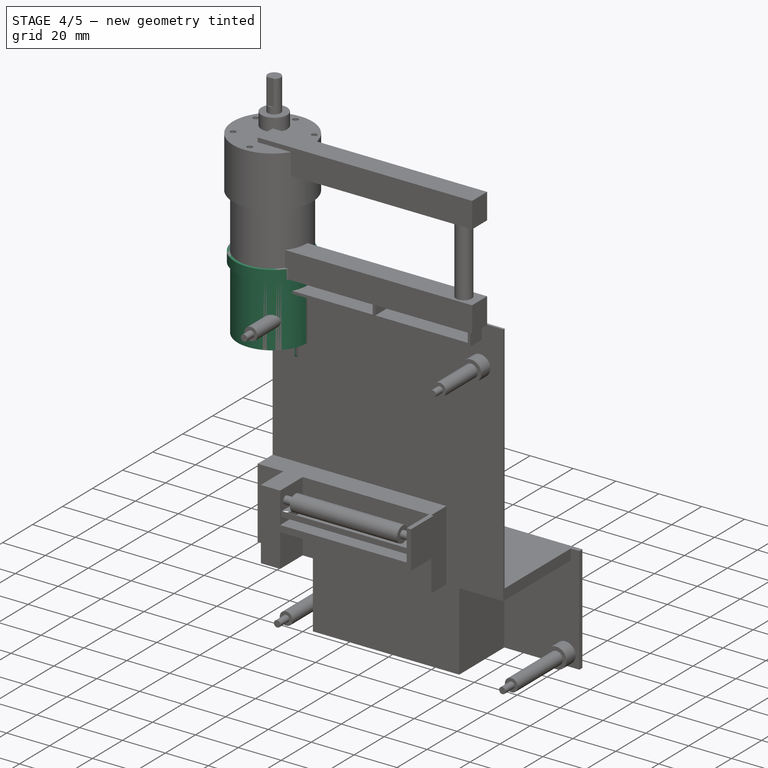
[diagram: stage 4 of 5 — iso view after this stage's code; geometry added in this stage tinted green]
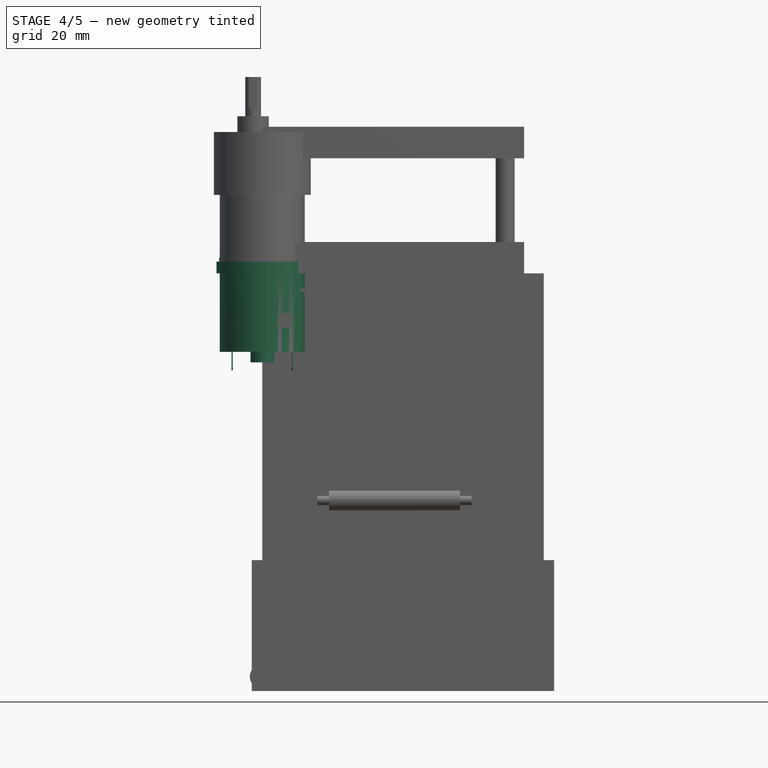
[diagram: stage 4 of 5 — front view after this stage's code; geometry added in this stage tinted green]
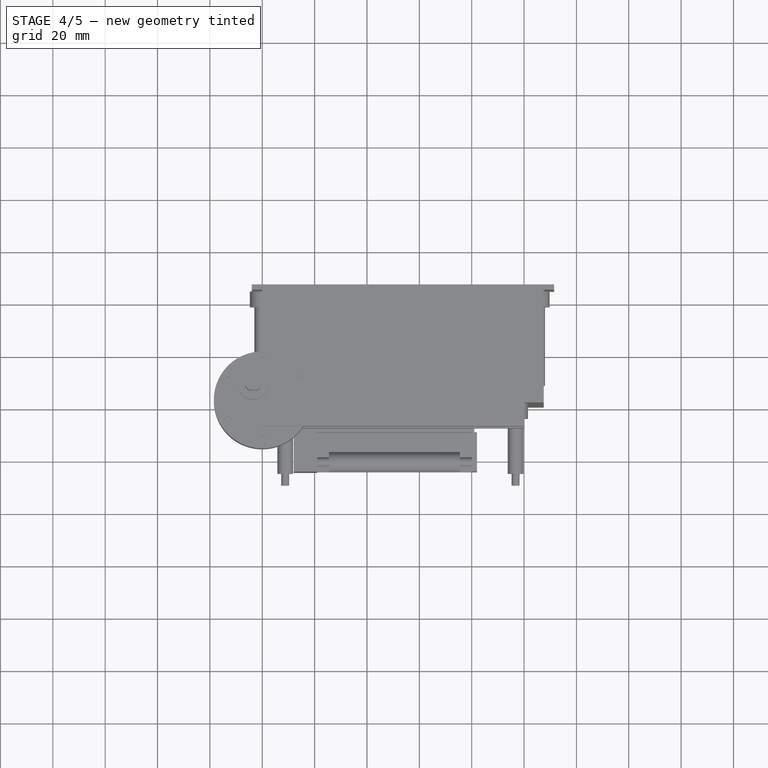
[diagram: stage 4 of 5 — top view after this stage's code; geometry added in this stage tinted green]
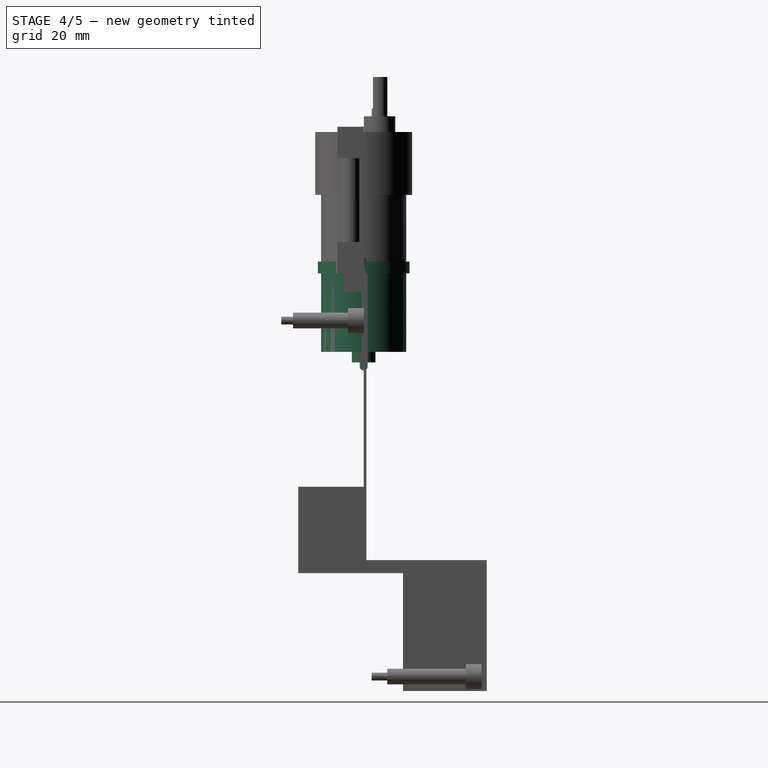
[diagram: stage 4 of 5 — right view after this stage's code; geometry added in this stage tinted green]
FEATURE [PartDesign::Body] Body  label="Körper"
  AllowCompound = false
  Group = -> [Sketch,Pad,Sketch001,Pad001,Sketch002,Pad002,Fillet,Sketch003,Pad003,Sketch004,Pad004,Fillet001]
  Placement = pos=(0,44,0) rot=(0,0,1;0rad)
  Tip = -> Fillet001
FEATURE [Sketcher::SketchObject] Sketch005
  ArcFitTolerance = 1e-06
  FullyConstrained = true
  MakeInternals = false
  MapMode = 5
  sketch-geometry (1):
    g0: Circle CenterX=0 CenterY=0 CenterZ=0 NormalX=0 NormalY=0 NormalZ=1 AngleXU=0 Radius=17.5
  constraints (2):
    c: Diameter(g0) = 35
    c: Coincident(g0,g-1)
FEATURE [PartDesign::Pad] Pad005
  Direction = (0,0,1)
  Length = 4.5
  Length2 = 10
  Profile = -> Sketch005
  ReferenceAxis = -> Sketch005 [N_Axis]
  Refine = true
  Suppressed = false
  Type = 0
FEATURE [Sketcher::SketchObject] Sketch006
  ArcFitTolerance = 1e-06
  AttachmentSupport = -> [Pad005]
  FullyConstrained = true
  MakeInternals = false
  MapMode = 5
  Placement = pos=(0,0,0) rot=(1,0,0;3.14159rad)
  sketch-geometry (1):
    g0: Circle CenterX=0 CenterY=0 CenterZ=0 NormalX=0 NormalY=0 NormalZ=1 AngleXU=0 Radius=16.25
  constraints (2):
    c: Diameter(g0) = 32.5
    c: Coincident(g0,g-1)
FEATURE [PartDesign::Pad] Pad006
  BaseFeature = -> Pad005
  Direction = (0,0,-1)
  Length = 30
  Length2 = 10
  Profile = -> Sketch006
  ReferenceAxis = -> Sketch006 [N_Axis]
  Refine = true
  Suppressed = false
  Type = 0
FEATURE [Sketcher::SketchObject] Sketch007
  ArcFitTolerance = 1e-06
  AttachmentSupport = -> [Pad006]
  FullyConstrained = true
  MakeInternals = false
  MapMode = 5
  Placement = pos=(0,0,-30) rot=(1,0,0;3.14159rad)
  sketch-geometry (1):
    g0: Circle CenterX=0 CenterY=0 CenterZ=0 NormalX=0 NormalY=0 NormalZ=1 AngleXU=0 Radius=4.5
  constraints (2):
    c: Diameter(g0) = 9
    c: Coincident(g0,g-1)
FEATURE [PartDesign::Pad] Pad007
  BaseFeature = -> Pad006
  Direction = (0,0,-1)
  Length = 4
  Length2 = 10
  Profile = -> Sketch007 [Edge1]
  ReferenceAxis = -> Sketch007 [N_Axis]
  Refine = true
  Suppressed = false
  Type = 0
FEATURE [Sketcher::SketchObject] Sketch008
  ArcFitTolerance = 1e-06
  AttachmentSupport = -> [Pad007]
  ExternalGeometry = -> [Pad007]
  FullyConstrained = true
  MakeInternals = false
  MapMode = 5
  Placement = pos=(0,0,-30) rot=(1,0,0;3.14159rad)
  sketch-geometry (12):
    g0: LineSegment StartX=11.25 StartY=1.5 StartZ=0 EndX=11.25 EndY=-1.5 EndZ=0
    g1: LineSegment StartX=11.25 StartY=-1.5 StartZ=0 EndX=11.75 EndY=-1.5 EndZ=0
    g2: LineSegment StartX=11.75 StartY=-1.5 StartZ=0 EndX=11.75 EndY=1.5 EndZ=0
    g3: LineSegment StartX=11.75 StartY=1.5 StartZ=0 EndX=11.25 EndY=1.5 EndZ=0
    g4: LineSegment StartX=-11.75 StartY=1.5 StartZ=0 EndX=-11.75 EndY=-1.5 EndZ=0
    g5: LineSegment StartX=-11.75 StartY=-1.5 StartZ=0 EndX=-11.25 EndY=-1.5 EndZ=0
    g6: LineSegment StartX=-11.25 StartY=-1.5 StartZ=0 EndX=-11.25 EndY=1.5 EndZ=0
    g7: LineSegment StartX=-11.25 StartY=1.5 StartZ=0 EndX=-11.75 EndY=1.5 EndZ=0
    g8: GeomPoint X=11.25 Y=0 Z=0
    g9: GeomPoint X=-11.75 Y=0 Z=0
    g10: LineSegment [constr] StartX=-11.75 StartY=0 StartZ=0 EndX=-16.25 EndY=0 EndZ=0
    g11: LineSegment [constr] StartX=11.75 StartY=1e-16 StartZ=0 EndX=16.25 EndY=1e-16 EndZ=0
  constraints (32):
    c: Coincident(g0,g1)
    c: Coincident(g1,g2)
    c: Coincident(g2,g3)
    c: Coincident(g3,g0)
    c: Vertical(g0)
    c: Vertical(g2)
    c: Horizontal(g1)
    c: Horizontal(g3)
    c: Coincident(g4,g5)
    c: Coincident(g5,g6)
    c: Coincident(g6,g7)
    c: Coincident(g7,g4)
    c: Vertical(g4)
    c: Vertical(g6)
    c: Horizontal(g5)
    c: Horizontal(g7)
    c: Equal(g4,g0)
    c: Equal(g7,g3)
    c: Symmetric(g0,g0,g8)
    c: PointOnObject(g8,g-1)
    c: Symmetric(g4,g4,g9)
    c: PointOnObject(g9,g-1)
    c: Coincident(g10,g9)
    c: PointOnObject(g10,g-1)
    c: PointOnObject(g10,g-3)
    c: Symmetric(g2,g2,g11)
    c: PointOnObject(g11,g-3)
    c: Horizontal(g11)
    c: Equal(g11,g10)
    c: DistanceX(g11,g11) = 4.5
    c: DistanceX(g1,g1) = 0.5
    c: DistanceY(g2,g2) = 3
FEATURE [PartDesign::Pad] Pad008
  BaseFeature = -> Pad007
  Direction = (0,0,-1)
  Length = 7
  Length2 = 10
  Profile = -> Sketch008
  ReferenceAxis = -> Sketch008 [N_Axis]
  Refine = true
  Suppressed = false
  Type = 0
FEATURE [PartDesign::Fillet] Fillet002
  Base = -> Pad008 [Edge28,Edge32,Edge22,Edge18]
  BaseFeature = -> Pad008
  Radius = 1.4
  Refine = true
  SupportTransform = false
  Suppressed = false
  UseAllEdges = false
FEATURE [Sketcher::SketchObject] Sketch009
  ArcFitTolerance = 1e-06
  AttachmentSupport = -> [Fillet002]
  ExternalGeometry = -> [Fillet002]
  FullyConstrained = true
  MakeInternals = false
  MapMode = 5
  Placement = pos=(0,0,4.5) rot=(0,0,1;0rad)
  sketch-geometry (4):
    g0: Circle CenterX=-15.25 CenterY=0 CenterZ=0 NormalX=0 NormalY=0 NormalZ=1 AngleXU=0 Radius=1.25
    g1: Circle CenterX=15.25 CenterY=0 CenterZ=0 NormalX=0 NormalY=0 NormalZ=1 AngleXU=0 Radius=1.25
    g2: LineSegment [constr] StartX=-16.5 StartY=0 StartZ=0 EndX=-17.5 EndY=0 EndZ=0
    g3: LineSegment [constr] StartX=16.5 StartY=0 StartZ=0 EndX=17.5 EndY=0 EndZ=0
  constraints (14):
    c: PointOnObject(g0,g-1)
    c: PointOnObject(g1,g-1)
    c: Equal(g1,g0)
    c: Diameter(g0) = 2.5
    c: PointOnObject(g2,g0)
    c: PointOnObject(g2,g-3)
    c: PointOnObject(g3,g1)
    c: PointOnObject(g3,g-3)
    c: Horizontal(g3)
    c: Horizontal(g3,g1)
    c: Horizontal(g2)
    c: PointOnObject(g2,g-1)
    c: Equal(g2,g3)
    c: DistanceX(g3,g3) = 1
FEATURE [PartDesign::Pad] Pad009
  BaseFeature = -> Fillet002
  Direction = (0,0,1)
  Length = 1.5
  Length2 = 10
  Profile = -> Sketch009
  ReferenceAxis = -> Sketch009 [N_Axis]
  Refine = true
  Suppressed = false
  Type = 0
FEATURE [Sketcher::SketchObject] Sketch010
  ArcFitTolerance = 1e-06
  AttachmentSupport = -> [Pad009]
  ExternalGeometry = -> [Pad009]
  FullyConstrained = true
  MakeInternals = false
  MapMode = 5
  Placement = pos=(0,0,4.5) rot=(0,0,1;0rad)
  sketch-geometry (10):
    g0: Circle CenterX=0 CenterY=15.5 CenterZ=0 NormalX=0 NormalY=0 NormalZ=1 AngleXU=0 Radius=1
    g1: Circle CenterX=-13.4234 CenterY=-7.75 CenterZ=0 NormalX=0 NormalY=0 NormalZ=1 AngleXU=0 Radius=1
    g2: Circle CenterX=13.4234 CenterY=-7.75 CenterZ=0 NormalX=0 NormalY=0 NormalZ=1 AngleXU=0 Radius=1
    g3: LineSegment [constr] StartX=0 StartY=15.5 StartZ=0 EndX=-13.4234 EndY=-7.75 EndZ=0
    g4: LineSegment [constr] StartX=-13.4234 StartY=-7.75 StartZ=0 EndX=13.4234 EndY=-7.75 EndZ=0
    g5: LineSegment [constr] StartX=13.4234 StartY=-7.75 StartZ=0 EndX=1.5e-15 EndY=15.5 EndZ=0
    g6: LineSegment [constr] StartX=0 StartY=15.5 StartZ=0 EndX=0 EndY=17.5 EndZ=0
    g7: LineSegment [constr] StartX=0 StartY=0 StartZ=0 EndX=6.7117 EndY=3.875 EndZ=0
    g8: LineSegment [constr] StartX=0 StartY=0 StartZ=0 EndX=-6.7117 EndY=3.875 EndZ=0
    g9: LineSegment [constr] StartX=0 StartY=0 StartZ=0 EndX=3e-16 EndY=-7.75 EndZ=0
  constraints (24):
    c: PointOnObject(g0,g-2)
    c: Equal(g2,g0)
    c: Equal(g0,g1)
    c: Diameter(g0) = 2
    c: Coincident(g3,g0)
    c: Coincident(g3,g1)
    c: Coincident(g4,g1)
    c: Coincident(g4,g2)
    c: Horizontal(g4)
    c: Coincident(g5,g2)
    c: Coincident(g5,g0)
    c: Coincident(g6,g0)
    c: PointOnObject(g6,g-2)
    c: PointOnObject(g6,g-3)
    c: Equal(g4,g5)
    c: Equal(g5,g3)
    c: Coincident(g7,g-1)
    c: Symmetric(g5,g5,g7)
    c: Coincident(g8,g7)
    c: Symmetric(g3,g3,g8)
    c: Coincident(g9,g7)
    c: Symmetric(g4,g4,g9)
    c: Equal(g9,g8)
    c: DistanceY(g6,g6) = 2
FEATURE [PartDesign::Pocket] Pocket
  BaseFeature = -> Pad009
  Direction = (0,0,-1)
  Length = 4.5
  Length2 = 5
  Profile = -> Sketch010
  ReferenceAxis = -> Sketch010 [N_Axis]
  Refine = true
  Suppressed = false
  Type = 0
FEATURE [Sketcher::SketchObject] Sketch011
  ArcFitTolerance = 1e-06
  AttachmentSupport = -> [Pocket]
  FullyConstrained = true
  MakeInternals = false
  MapMode = 5
  Placement = pos=(0,0,4.5) rot=(0,0,1;0rad)
  sketch-geometry (1):
    g0: Circle CenterX=0 CenterY=0 CenterZ=0 NormalX=0 NormalY=0 NormalZ=1 AngleXU=0 Radius=6.5
  constraints (2):
    c: Diameter(g0) = 13
    c: Coincident(g0,g-1)
FEATURE [PartDesign::Pocket] Pocket001
  BaseFeature = -> Pocket
  Direction = (0,0,-1)
  Length = 2
  Length2 = 5
  Profile = -> Sketch011
  ReferenceAxis = -> Sketch011 [N_Axis]
  Refine = true
  Suppressed = false
  Type = 0
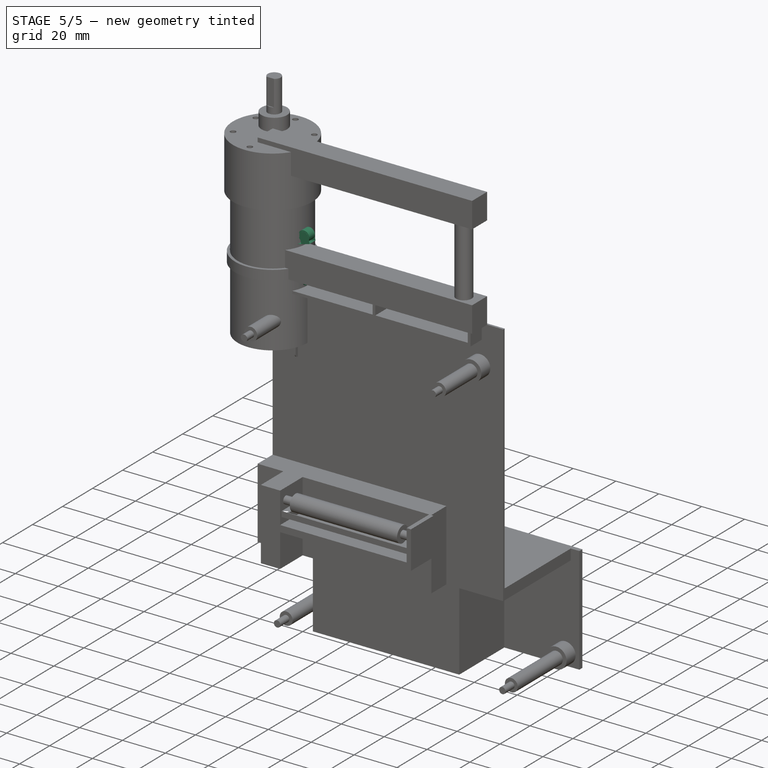
[diagram: stage 5 of 5 — iso view after this stage's code; geometry added in this stage tinted green]
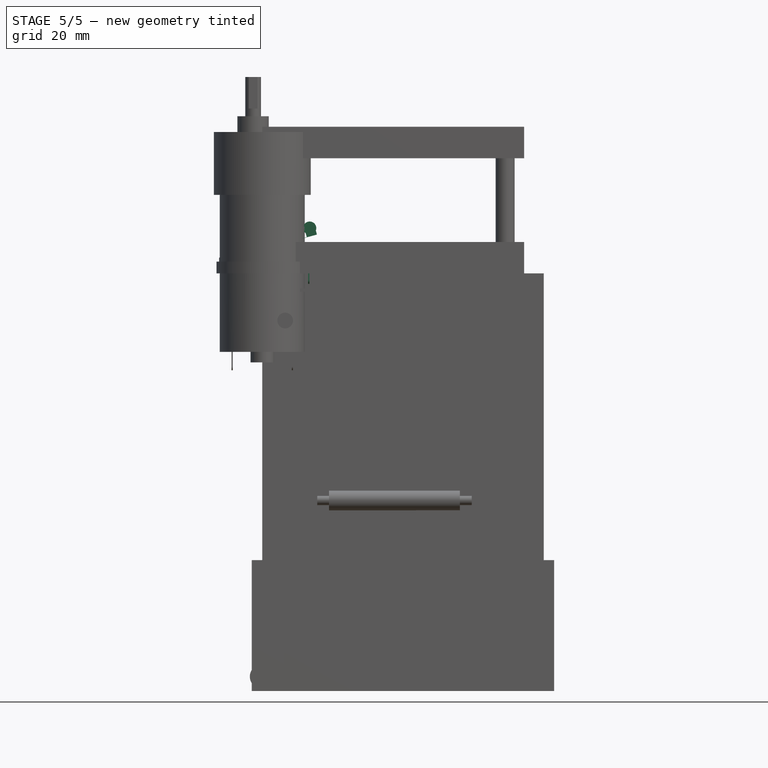
[diagram: stage 5 of 5 — front view after this stage's code; geometry added in this stage tinted green]
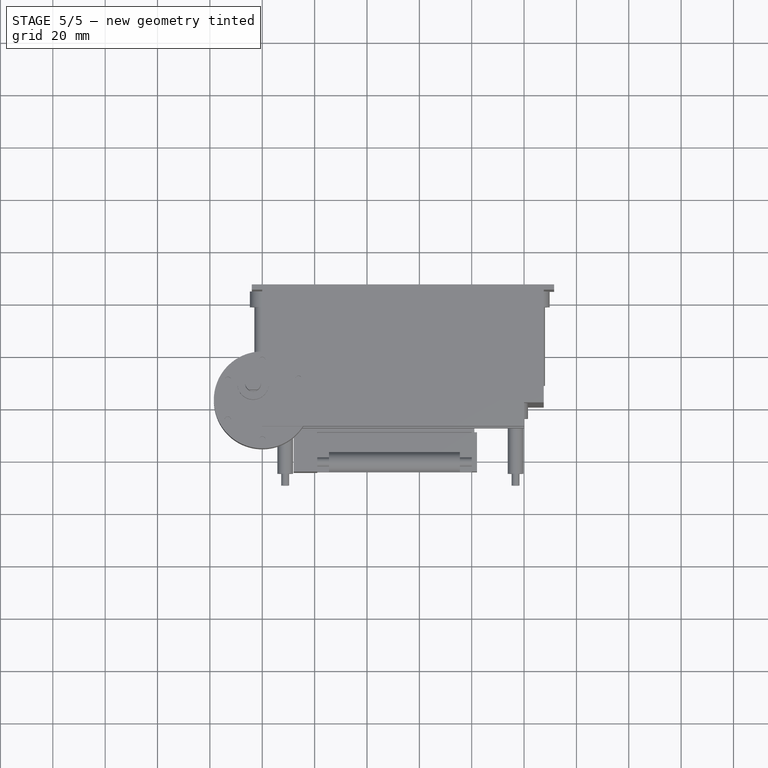
[diagram: stage 5 of 5 — top view after this stage's code; geometry added in this stage tinted green]
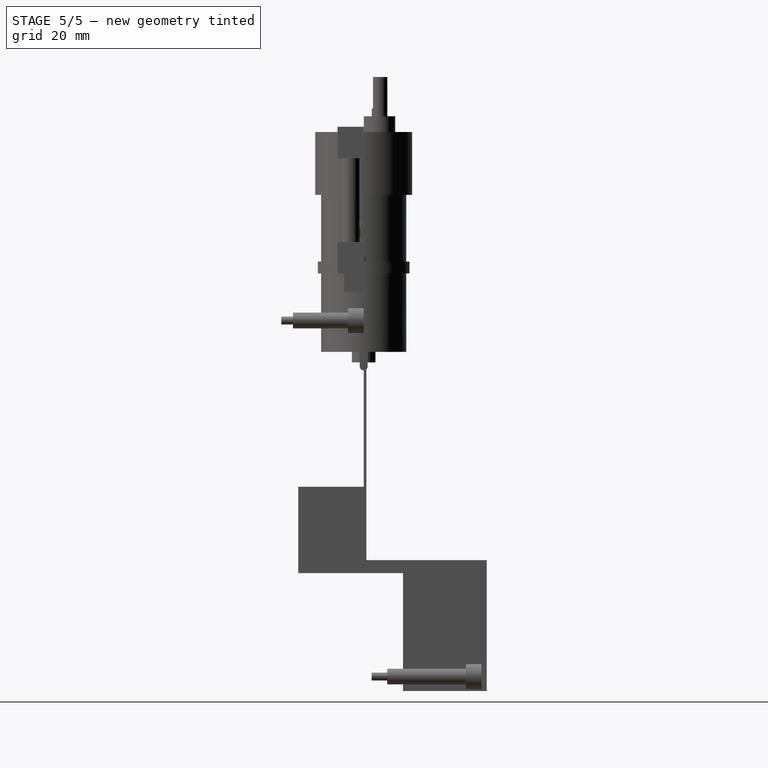
[diagram: stage 5 of 5 — right view after this stage's code; geometry added in this stage tinted green]
FEATURE [Sketcher::SketchObject] Sketch
  ArcFitTolerance = 1e-06
  FullyConstrained = true
  MakeInternals = false
  MapMode = 5
  Placement = pos=(0,0,0) rot=(1,0,0;1.5708rad)
  sketch-geometry (10):
    g0: LineSegment StartX=0 StartY=0 StartZ=0 EndX=20 EndY=0 EndZ=0
    g1: LineSegment StartX=20 StartY=0 StartZ=0 EndX=20 EndY=10 EndZ=0
    g2: LineSegment StartX=20 StartY=10 StartZ=0 EndX=0 EndY=10 EndZ=0
    g3: LineSegment StartX=0 StartY=10 StartZ=0 EndX=0 EndY=0 EndZ=0
    g4: Circle CenterX=5 CenterY=2.5 CenterZ=0 NormalX=0 NormalY=0 NormalZ=1 AngleXU=0 Radius=1.25
    g5: Circle CenterX=15 CenterY=2.5 CenterZ=0 NormalX=0 NormalY=0 NormalZ=1 AngleXU=0 Radius=1.25
    g6: LineSegment [constr] StartX=5 StartY=2.5 StartZ=0 EndX=0 EndY=2.5 EndZ=0
    g7: LineSegment [constr] StartX=5 StartY=2.5 StartZ=0 EndX=15 EndY=2.5 EndZ=0
    g8: LineSegment [constr] StartX=15 StartY=2.5 StartZ=0 EndX=20 EndY=2.5 EndZ=0
    g9: LineSegment [constr] StartX=15 StartY=2.5 StartZ=0 EndX=15 EndY=0 EndZ=0
  constraints (28):
    c: Coincident(g0,g1)
    c: Coincident(g1,g2)
    c: Coincident(g2,g3)
    c: Coincident(g3,g0)
    c: Horizontal(g0)
    c: Horizontal(g2)
    c: Vertical(g1)
    c: Vertical(g3)
    c: Distance(g1,g3) = 20
    c: Distance(g0,g2) = 10
    c: Coincident(g0,g-1)
    c: Equal(g4,g5)
    c: Coincident(g6,g4)
    c: PointOnObject(g6,g3)
    c: Horizontal(g6)
    c: Coincident(g7,g4)
    c: Coincident(g7,g5)
    c: Horizontal(g7)
    c: Coincident(g8,g5)
    c: PointOnObject(g8,g1)
    c: Horizontal(g8)
    c: Equal(g6,g8)
    c: DistanceX(g8,g8) = 5
    c: Diameter(g5) = 2.5
    c: Coincident(g9,g5)
    c: PointOnObject(g9,g0)
    c: Vertical(g9)
    c: DistanceY(g9,g9) = 2.5
FEATURE [PartDesign::Pad] Pad
  Direction = (0,-1,2e-16)
  Length = 6.5
  Length2 = 10
  Placement = pos=(0,0,0) rot=(1,0,0;1.5708rad)
  Profile = -> Sketch
  ReferenceAxis = -> Sketch [N_Axis]
  Refine = true
  Suppressed = false
  Type = 0
FEATURE [Sketcher::SketchObject] Sketch001
  ArcFitTolerance = 1e-06
  AttachmentOffset = pos=(-2.5,-1.5,0) rot=(0,1,0;0.261799rad)
  AttachmentSupport = -> [Pad]
  ExternalGeometry = -> [Pad]
  FullyConstrained = true
  MakeInternals = false
  MapMode = 5
  Placement = pos=(2.5,1.5,10) rot=(-0.130526,0,0.991445;3.14159rad)
  sketch-geometry (6):
    g0: LineSegment StartX=-1e-16 StartY=2.72892 StartZ=0 EndX=-1e-16 EndY=6.72892 EndZ=0
    g1: LineSegment StartX=-1e-16 StartY=6.72892 StartZ=0 EndX=-19 EndY=6.72892 EndZ=0
    g2: LineSegment StartX=-19 StartY=6.72892 StartZ=0 EndX=-19 EndY=2.72892 EndZ=0
    g3: LineSegment StartX=-19 StartY=2.72892 StartZ=0 EndX=0 EndY=2.72892 EndZ=0
    g4: LineSegment [constr] StartX=2.41481 StartY=8 StartZ=0 EndX=-1e-16 EndY=6.72892 EndZ=0
    g5: LineSegment [constr] StartX=-1e-16 StartY=2.72892 StartZ=0 EndX=0 EndY=0 EndZ=0
  constraints (16):
    c: Coincident(g0,g1)
    c: Coincident(g1,g2)
    c: Coincident(g2,g3)
    c: Coincident(g3,g0)
    c: Vertical(g0)
    c: Vertical(g2)
    c: Horizontal(g1)
    c: Horizontal(g3)
    c: Distance(g0,g2) = 19
    c: Distance(g1,g3) = 4
    c: PointOnObject(g0,g-2)
    c: Coincident(g4,g-3)
    c: Coincident(g4,g0)
    c: Coincident(g5,g0)
    c: Coincident(g5,g-1)
    c: Equal(g5,g4)
FEATURE [PartDesign::Pad] Pad001
  BaseFeature = -> Pad
  Direction = (-0.258819,0,0.965926)
  Length = 0.1
  Length2 = 10
  Placement = pos=(0,0,0) rot=(1,0,0;1.5708rad)
  Profile = -> Sketch001
  ReferenceAxis = -> Sketch001 [N_Axis]
  Refine = true
  Reversed = true
  Suppressed = false
  Type = 0
FEATURE [Sketcher::SketchObject] Sketch002
  ArcFitTolerance = 1e-06
  AttachmentSupport = -> [Pad001]
  ExternalGeometry = -> [Pad001]
  FullyConstrained = true
  MakeInternals = false
  MapMode = 5
  Placement = pos=(-2.33253,1e-15,8.70513) rot=(-0.130526,0,0.991445;3.14159rad)
  sketch-geometry (8):
    g0: LineSegment StartX=-24.003 StartY=5.22892 StartZ=0 EndX=-24.003 EndY=5.12892 EndZ=0
    g1: LineSegment StartX=-24.003 StartY=5.12892 StartZ=0 EndX=-20.003 EndY=5.12892 EndZ=0
    g2: LineSegment StartX=-20.003 StartY=5.12892 StartZ=0 EndX=-20.003 EndY=5.22892 EndZ=0
    g3: LineSegment StartX=-20.003 StartY=5.22892 StartZ=0 EndX=-24.003 EndY=5.22892 EndZ=0
    g4: LineSegment StartX=-24.003 StartY=1.22892 StartZ=0 EndX=-20.003 EndY=1.22892 EndZ=0
    g5: LineSegment StartX=-20.003 StartY=1.22892 StartZ=0 EndX=-20.003 EndY=1.32892 EndZ=0
    g6: LineSegment StartX=-20.003 StartY=1.32892 StartZ=0 EndX=-24.003 EndY=1.32892 EndZ=0
    g7: LineSegment StartX=-24.003 StartY=1.32892 StartZ=0 EndX=-24.003 EndY=1.22892 EndZ=0
  constraints (22):
    c: Coincident(g0,g1)
    c: Coincident(g1,g2)
    c: Coincident(g2,g3)
    c: Coincident(g3,g0)
    c: Vertical(g0)
    c: Vertical(g2)
    c: Horizontal(g1)
    c: Horizontal(g3)
    c: Distance(g0,g2) = 4
    c: Distance(g1,g3) = 0.1
    c: Coincident(g0,g-3)
    c: Coincident(g4,g5)
    c: Coincident(g5,g6)
    c: Coincident(g6,g7)
    c: Coincident(g7,g4)
    c: Horizontal(g4)
    c: Horizontal(g6)
    c: Vertical(g5)
    c: Vertical(g7)
    c: Coincident(g4,g-4)
    c: Equal(g6,g1)
    c: Equal(g5,g2)
FEATURE [PartDesign::Pad] Pad002
  BaseFeature = -> Pad001
  Direction = (-0.258819,0,0.965926)
  Length = 5
  Length2 = 10
  Placement = pos=(0,0,0) rot=(1,0,0;1.5708rad)
  Profile = -> Sketch002
  ReferenceAxis = -> Sketch002 [N_Axis]
  Refine = true
  Suppressed = false
  Type = 0
FEATURE [PartDesign::Fillet] Fillet
  Base = -> Pad002 [Edge45,Edge42,Edge35,Edge44]
  BaseFeature = -> Pad002
  Placement = pos=(0,0,0) rot=(1,0,0;1.5708rad)
  Radius = 1.99
  Refine = true
  SupportTransform = false
  Suppressed = false
  UseAllEdges = false
FEATURE [Sketcher::SketchObject] Sketch003
  ArcFitTolerance = 1e-06
  AttachmentSupport = -> [Fillet]
  ExternalGeometry = -> [Fillet]
  FullyConstrained = true
  MakeInternals = false
  MapMode = 5
  Placement = pos=(0,-1.32892,1e-16) rot=(1,0,0;1.5708rad)
  sketch-geometry (1):
    g0: Circle CenterX=18.132 CenterY=17.3048 CenterZ=0 NormalX=0 NormalY=0 NormalZ=1 AngleXU=0 Radius=2.5
  constraints (2):
    c: Diameter(g0) = 5
    c: Coincident(g0,g-3)
FEATURE [PartDesign::Pad] Pad003
  BaseFeature = -> Fillet
  Direction = (0,-1,2e-16)
  Length = 3.8
  Length2 = 10
  Placement = pos=(0,0,0) rot=(1,0,0;1.5708rad)
  Profile = -> Sketch003
  ReferenceAxis = -> Sketch003 [N_Axis]
  Refine = true
  Suppressed = false
  Type = 0
FEATURE [Sketcher::SketchObject] Sketch004
  ArcFitTolerance = 1e-06
  AttachmentSupport = -> [Pad003]
  ExternalGeometry = -> [Pad003]
  FullyConstrained = true
  MakeInternals = false
  MapMode = 5
  Placement = pos=(0,0,0) rot=(1,0,0;3.14159rad)
  sketch-geometry (14):
    g0: LineSegment StartX=17.5 StartY=4.75 StartZ=0 EndX=17.5 EndY=1.75 EndZ=0
    g1: LineSegment StartX=17.5 StartY=1.75 StartZ=0 EndX=18 EndY=1.75 EndZ=0
    g2: LineSegment StartX=18 StartY=1.75 StartZ=0 EndX=18 EndY=4.75 EndZ=0
    g3: LineSegment StartX=18 StartY=4.75 StartZ=0 EndX=17.5 EndY=4.75 EndZ=0
    g4: LineSegment [constr] StartX=18 StartY=4.75 StartZ=0 EndX=18 EndY=6.5 EndZ=0
    g5: LineSegment [constr] StartX=18 StartY=1.75 StartZ=0 EndX=18 EndY=0 EndZ=0
    g6: LineSegment StartX=11.5 StartY=4.75 StartZ=0 EndX=11.5 EndY=1.75 EndZ=0
    g7: LineSegment StartX=11.5 StartY=1.75 StartZ=0 EndX=11 EndY=1.75 EndZ=0
    g8: LineSegment StartX=11 StartY=1.75 StartZ=0 EndX=11 EndY=4.75 EndZ=0
    g9: LineSegment StartX=11 StartY=4.75 StartZ=0 EndX=11.5 EndY=4.75 EndZ=0
    g10: LineSegment StartX=1.8 StartY=4.75 StartZ=0 EndX=1.8 EndY=1.75 EndZ=0
    g11: LineSegment StartX=1.8 StartY=1.75 StartZ=0 EndX=2.3 EndY=1.75 EndZ=0
    g12: LineSegment StartX=2.3 StartY=1.75 StartZ=0 EndX=2.3 EndY=4.75 EndZ=0
    g13: LineSegment StartX=2.3 StartY=4.75 StartZ=0 EndX=1.8 EndY=4.75 EndZ=0
  constraints (42):
    c: Coincident(g0,g1)
    c: Coincident(g1,g2)
    c: Coincident(g2,g3)
    c: Coincident(g3,g0)
    c: Vertical(g0)
    c: Vertical(g2)
    c: Horizontal(g1)
    c: Horizontal(g3)
    c: DistanceX(g1,g-4) = 2
    c: DistanceX(g1,g1) = 0.5
    c: DistanceY(g2,g2) = 3
    c: Coincident(g4,g2)
    c: Vertical(g4)
    c: Coincident(g5,g1)
    c: PointOnObject(g5,g-1)
    c: Vertical(g5)
    c: Equal(g4,g5)
    c: Horizontal(g4,g-3)
    c: Coincident(g6,g7)
    c: Coincident(g7,g8)
    c: Coincident(g8,g9)
    c: Coincident(g9,g6)
    c: Vertical(g6)
    c: Vertical(g8)
    c: Horizontal(g7)
    c: Horizontal(g9)
    c: Equal(g8,g0)
    c: Equal(g9,g3)
    c: Horizontal(g8,g0)
    c: DistanceX(g8,g-3) = 9
    c: Coincident(g10,g11)
    c: Coincident(g11,g12)
    c: Coincident(g12,g13)
    c: Coincident(g13,g10)
    c: Vertical(g10)
    c: Vertical(g12)
    c: Horizontal(g11)
    c: Horizontal(g13)
    c: Equal(g12,g8)
    c: Equal(g13,g9)
    c: Horizontal(g12,g8)
    c: DistanceX(g-1,g10) = 1.8
FEATURE [PartDesign::Pad] Pad004
  BaseFeature = -> Pad003
  Direction = (0,0,-1)
  Length = 4
  Length2 = 10
  Placement = pos=(0,0,0) rot=(1,0,0;1.5708rad)
  Profile = -> Sketch004
  ReferenceAxis = -> Sketch004 [N_Axis]
  Refine = true
  Suppressed = false
  Type = 0
FEATURE [PartDesign::Fillet] Fillet001
  Base = -> Pad004 [Edge86,Edge90,Edge107,Edge104,Edge94,Edge98]
  BaseFeature = -> Pad004
  Placement = pos=(0,0,0) rot=(1,0,0;1.5708rad)
  Radius = 1.49
  Refine = true
  SupportTransform = false
  Suppressed = false
  UseAllEdges = false
FEATURE [Sketcher::SketchObject] Sketch012
  ArcFitTolerance = 1e-06
  AttachmentSupport = -> [Pocket001]
  FullyConstrained = true
  MakeInternals = false
  MapMode = 5
  Placement = pos=(0,0,2.5) rot=(0,0,1;0rad)
  sketch-geometry (1):
    g0: Circle CenterX=0 CenterY=0 CenterZ=0 NormalX=0 NormalY=0 NormalZ=1 AngleXU=0 Radius=1
  constraints (2):
    c: Diameter(g0) = 2
    c: Coincident(g0,g-1)
FEATURE [PartDesign::Pad] Pad010
  BaseFeature = -> Pocket001
  Direction = (0,0,1)
  Length = 7
  Length2 = 10
  Profile = -> Sketch012
  ReferenceAxis = -> Sketch012 [N_Axis]
  Refine = true
  Suppressed = false
  Type = 0
FEATURE [Sketcher::SketchObject] Sketch013
  ArcFitTolerance = 1e-06
  AttachmentSupport = -> [Pad010]
  FullyConstrained = true
  MakeInternals = false
  MapMode = 5
  Placement = pos=(0,0,9.5) rot=(0,0,1;0rad)
  sketch-geometry (1):
    g0: Circle CenterX=0 CenterY=0 CenterZ=0 NormalX=0 NormalY=0 NormalZ=1 AngleXU=0 Radius=3
  constraints (2):
    c: Diameter(g0) = 6
    c: Coincident(g0,g-1)
FEATURE [PartDesign::Pad] Pad011
  BaseFeature = -> Pad010
  Direction = (0,0,1)
  Length = 4
  Length2 = 10
  Profile = -> Sketch013 [Edge1]
  ReferenceAxis = -> Sketch013 [N_Axis]
  Refine = true
  Reversed = true
  Suppressed = false
  Type = 0
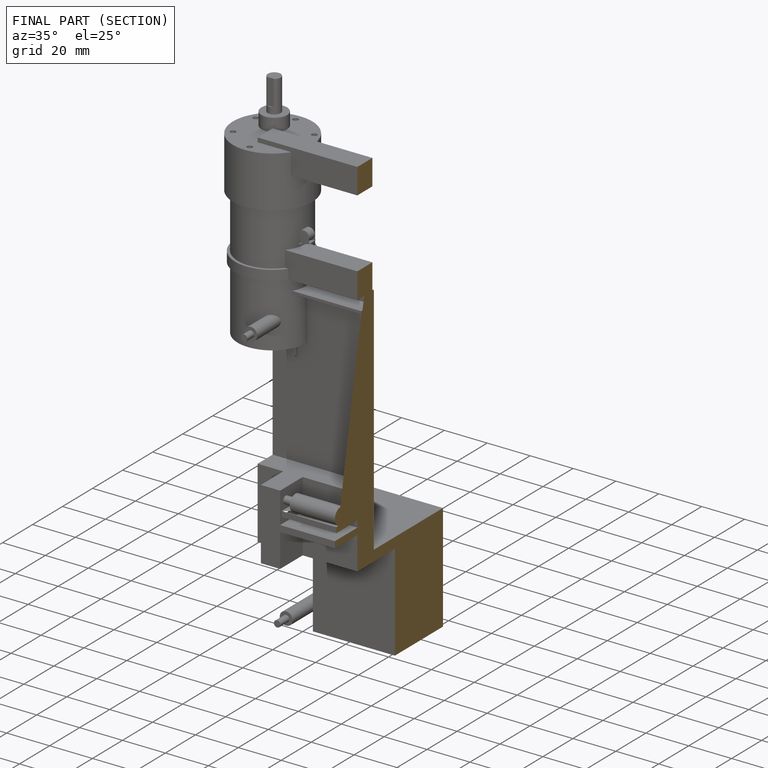
[diagram: finished part — half-section view (interior)]
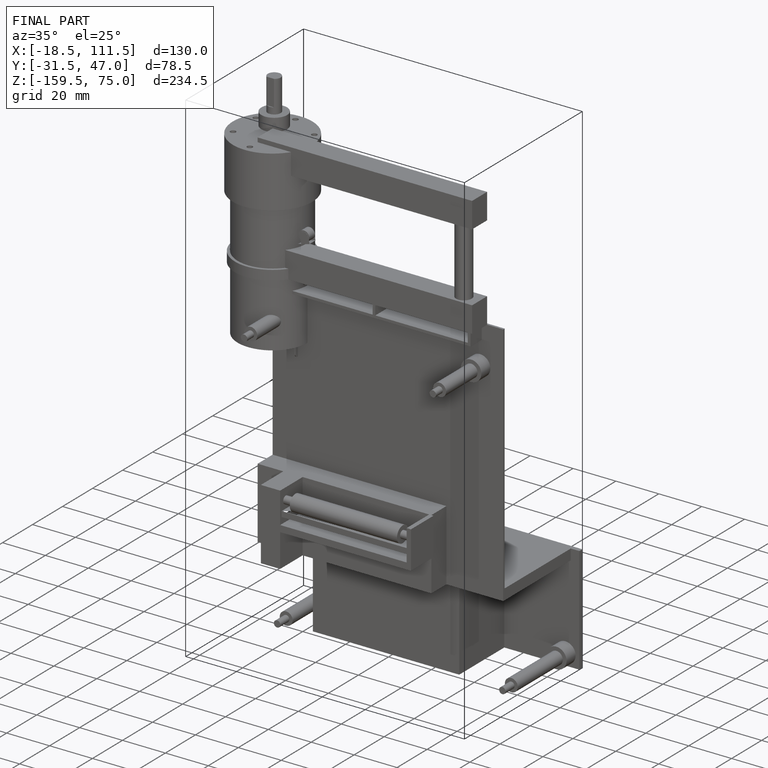
[diagram: finished part — iso view with bounding-box wireframe]
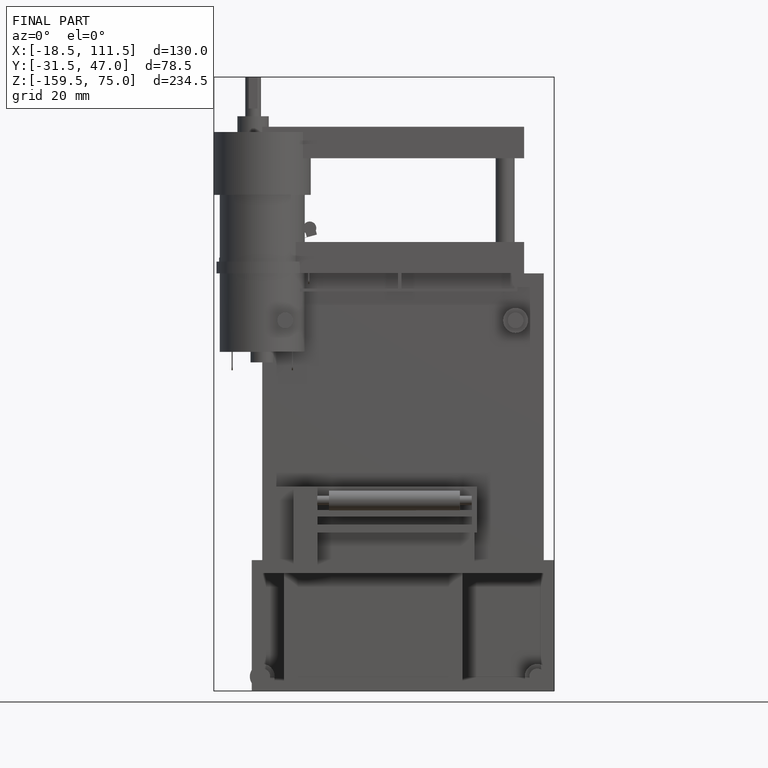
[diagram: finished part — front view with bounding-box wireframe]
